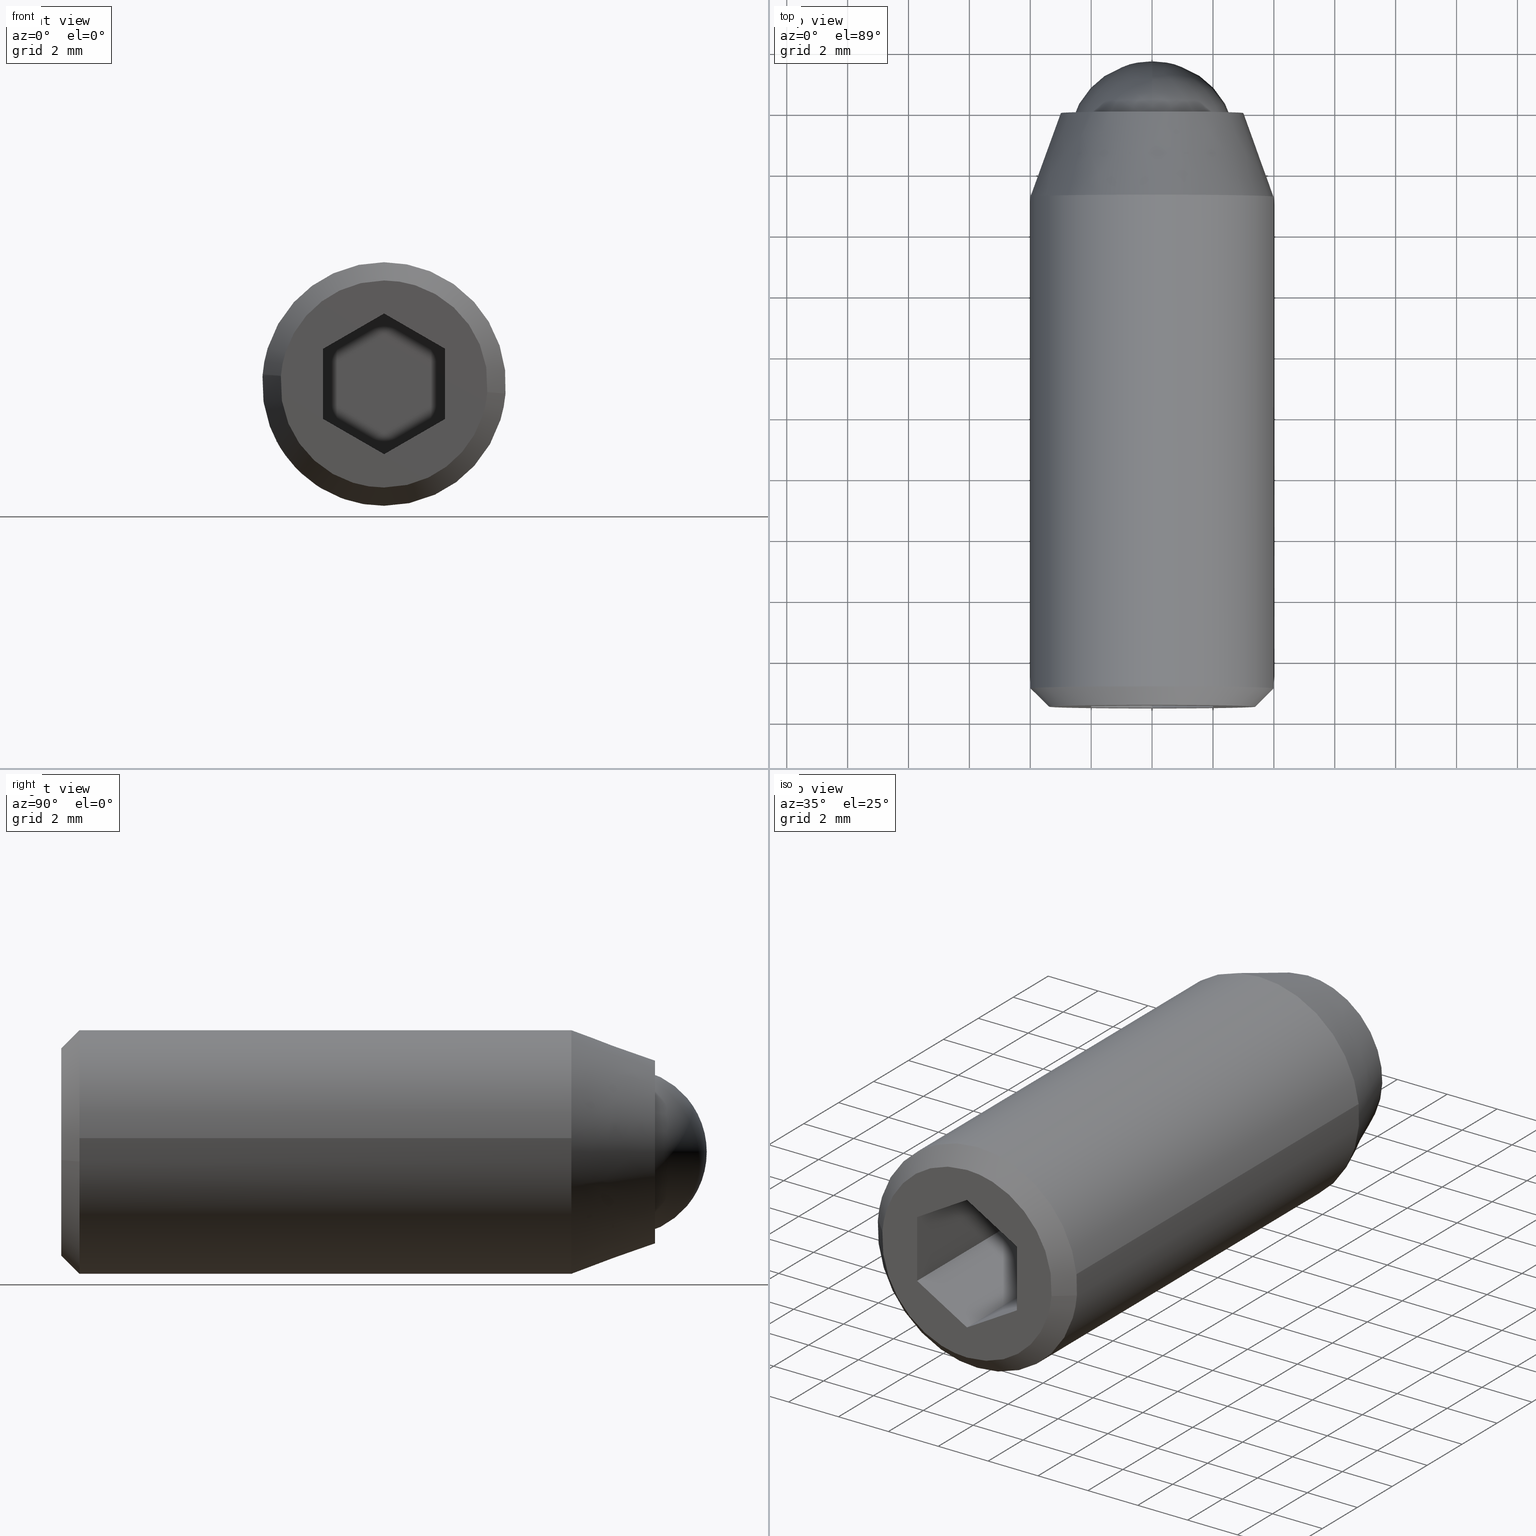
[diagram: canonical four-view strip — front | top / right | iso, engineering-drawing reading convention]
A machine part, canonical four-view strip (front | top / right | iso — engineering-drawing reading convention). The complete STEP part file that produces these views, byte-faithful:
ISO-10303-21;
HEADER;
/****************************************************************
 * Generated by software with PDE/Lib inside                    *
 * PDElib Version 4.4.1-0003, patched  Thursday August 19 11:58 *
 * International Technegroup Inc. (www.iti-oh.com)              *
 ****************************************************************/
FILE_DESCRIPTION((''),'2;1');
FILE_NAME('','2005-07-15T11:44:09',(''),(''),'','CADfix','');
FILE_SCHEMA(('AUTOMOTIVE_DESIGN'));
ENDSEC;
DATA;
#5=APPLICATION_CONTEXT('automotive design');
#6=APPLICATION_PROTOCOL_DEFINITION('Draft International Standard','automotive_design',1998,#5);
#7=PRODUCT_CONTEXT('None',#5,'mechanical');
#8=PRODUCT('body','','None',(#7));
#9=PRODUCT_RELATED_PRODUCT_CATEGORY('part','description',(#8));
#10=PRODUCT_DEFINITION_FORMATION('None','None',#8);
#11=PRODUCT_DEFINITION_CONTEXT('part definition',#5,'design');
#12=PRODUCT_DEFINITION('None','None',#10,#11);
#18=(NAMED_UNIT(*)PLANE_ANGLE_UNIT()SI_UNIT($,.RADIAN.));
#19=DIMENSIONAL_EXPONENTS(0.0,0.0,0.0,0.0,0.0,0.0,0.0);
#20=PLANE_ANGLE_MEASURE_WITH_UNIT(PLANE_ANGLE_MEASURE(0.017453292500000),#18);
#24=(CONVERSION_BASED_UNIT('DEGREE',#20)NAMED_UNIT(#19)PLANE_ANGLE_UNIT());
#28=(NAMED_UNIT(*)SI_UNIT($,.STERADIAN.)SOLID_ANGLE_UNIT());
#32=(LENGTH_UNIT()NAMED_UNIT(*)SI_UNIT(.MILLI.,.METRE.));
#34=UNCERTAINTY_MEASURE_WITH_UNIT(LENGTH_MEASURE(0.001000000000000),#32,'DISTANCE_ACCURACY_VALUE','');
#36=(GEOMETRIC_REPRESENTATION_CONTEXT(3)GLOBAL_UNCERTAINTY_ASSIGNED_CONTEXT((#34))GLOBAL_UNIT_ASSIGNED_CONTEXT((#24,#28,#32))REPRESENTATION_CONTEXT('None','None'));
#37=AXIS2_PLACEMENT_3D('',#38,#39,#40);
#38=CARTESIAN_POINT('',(0.0,0.0,0.0));
#39=DIRECTION('',(0.0,0.0,1.0));
#40=DIRECTION('',(1.0,0.0,0.0));
#41=ADVANCED_BREP_SHAPE_REPRESENTATION('',(#37,#953,#1164),#36);
#42=PRODUCT_DEFINITION_SHAPE('','',#12);
#43=SHAPE_DEFINITION_REPRESENTATION(#42,#41);
#44=CARTESIAN_POINT('',(-2.730776197500084,0.125000000000000,0.324594145306086));
#45=CARTESIAN_POINT('',(-2.740065942483665,0.125000000000000,0.246440503754439));
#46=CARTESIAN_POINT('',(-2.744870695660134,0.125000000000000,0.167883483720857));
#47=CARTESIAN_POINT('',(-2.912754179380990,0.125000000000000,-2.576987211939278));
#48=CARTESIAN_POINT('',(-0.167883483720857,0.125000000000000,-2.744870695660134));
#49=CARTESIAN_POINT('',(2.576987211939278,0.125000000000000,-2.912754179380990));
#50=CARTESIAN_POINT('',(2.744870695660134,0.125000000000000,-0.167883483720857));
#51=CARTESIAN_POINT('',(-2.730776197500084,-5.128125000000002,0.324594145306086));
#52=CARTESIAN_POINT('',(-2.740065942483665,-5.128125000000001,0.246440503754439));
#53=CARTESIAN_POINT('',(-2.744870695660134,-5.128125000000001,0.167883483720857));
#54=CARTESIAN_POINT('',(-2.912754179380990,-5.128125000000001,-2.576987211939278));
#55=CARTESIAN_POINT('',(-0.167883483720857,-5.128125000000001,-2.744870695660134));
#56=CARTESIAN_POINT('',(2.576987211939278,-5.128125000000001,-2.912754179380990));
#57=CARTESIAN_POINT('',(2.744870695660134,-5.128125000000001,-0.167883483720857));
#65=(BOUNDED_SURFACE()B_SPLINE_SURFACE(2,1,((#44,#51),(#45,#52),(#46,#53),(#47,#54),(#48,#55),(#49,#56),(#50,#57)),.UNSPECIFIED.,.F.,.F.,.U.)B_SPLINE_SURFACE_WITH_KNOTS((3,2,2,3),(2,2),(0.0,0.182253967444162,4.738603153548208,9.294952339652255),(0.0,5.253125000000002),.UNSPECIFIED.)GEOMETRIC_REPRESENTATION_ITEM()RATIONAL_B_SPLINE_SURFACE(((0.977505800795127,0.977505800795127),(0.988284271247462,0.988284271247462),(1.0,1.0),(0.707106781186548,0.707106781186548),(1.0,1.0),(0.707106781186548,0.707106781186548),(1.0,1.0)))REPRESENTATION_ITEM('')SURFACE());
#66=CARTESIAN_POINT('',(-2.730776770907558,-5.000000000000033,0.324589321216967));
#67=VERTEX_POINT('',#66);
#68=CARTESIAN_POINT('',(0.0,-5.0,-2.750000000000000));
#69=VERTEX_POINT('',#68);
#70=CARTESIAN_POINT('',(-2.730776770907559,-5.000000000000034,0.324589321216967));
#71=CARTESIAN_POINT('',(-2.750000000000001,-5.000000000000001,0.162863891499006));
#72=CARTESIAN_POINT('',(-2.750000000000000,-5.0,0.0));
#73=CARTESIAN_POINT('',(-2.750000000000000,-5.000000000000001,-2.750000000000000));
#74=CARTESIAN_POINT('',(0.0,-5.0,-2.750000000000000));
#82=(BOUNDED_CURVE()B_SPLINE_CURVE(2,(#70,#71,#72,#73,#74),.UNSPECIFIED.,.F.,.U.)B_SPLINE_CURVE_WITH_KNOTS((3,2,3),(0.229562772070619,0.250000000000000,0.500000000000000),.UNSPECIFIED.)CURVE()GEOMETRIC_REPRESENTATION_ITEM()RATIONAL_B_SPLINE_CURVE((0.956027339368690,0.976056298112558,1.0,0.707106781186548,1.0))REPRESENTATION_ITEM(''));
#83=EDGE_CURVE('',#67,#69,#82,.T.);
#84=ORIENTED_EDGE('',*,*,#83,.T.);
#85=CARTESIAN_POINT('',(2.744870880961206,-4.999999999999982,-0.167880454020225));
#86=VERTEX_POINT('',#85);
#87=CARTESIAN_POINT('',(0.0,-5.0,-2.750000000000000));
#88=CARTESIAN_POINT('',(2.586944544711403,-5.000000000000001,-2.750000000000000));
#89=CARTESIAN_POINT('',(2.744870880961206,-4.999999999999981,-0.167880454020225));
#97=(BOUNDED_CURVE()B_SPLINE_CURVE(2,(#87,#88,#89),.UNSPECIFIED.,.F.,.U.)B_SPLINE_CURVE_WITH_KNOTS((3,3),(0.500000000000000,0.739333152693633),.UNSPECIFIED.)CURVE()GEOMETRIC_REPRESENTATION_ITEM()RATIONAL_B_SPLINE_CURVE((1.0,0.719603770155162,0.976072449847712))REPRESENTATION_ITEM(''));
#98=EDGE_CURVE('',#69,#86,#97,.T.);
#99=ORIENTED_EDGE('',*,*,#98,.T.);
#100=CARTESIAN_POINT('',(2.744870878678144,-1.110223E-016,-0.167880491349306));
#101=VERTEX_POINT('',#100);
#102=CARTESIAN_POINT('',(2.744870878678144,-1.110223E-016,-0.167880491349306));
#103=CARTESIAN_POINT('',(2.744870880961206,-4.999999999999982,-0.167880454020225));
#104=QUASI_UNIFORM_CURVE('',1,(#102,#103),.UNSPECIFIED.,.F.,.U.);
#105=EDGE_CURVE('',#101,#86,#104,.T.);
#106=ORIENTED_EDGE('',*,*,#105,.F.);
#107=CARTESIAN_POINT('',(0.0,0.0,-2.750000000000000));
#108=VERTEX_POINT('',#107);
#109=CARTESIAN_POINT('',(0.0,0.0,-2.750000000000000));
#110=CARTESIAN_POINT('',(2.586944509464315,0.0,-2.749999999999999));
#111=CARTESIAN_POINT('',(2.744870878678144,-1.110223E-016,-0.167880491349306));
#119=(BOUNDED_CURVE()B_SPLINE_CURVE(2,(#109,#110,#111),.UNSPECIFIED.,.F.,.U.)B_SPLINE_CURVE_WITH_KNOTS((3,3),(0.500000000000000,0.739333150347069),.UNSPECIFIED.)CURVE()GEOMETRIC_REPRESENTATION_ITEM()RATIONAL_B_SPLINE_CURVE((1.0,0.719603772904333,0.976072444818570))REPRESENTATION_ITEM(''));
#120=EDGE_CURVE('',#108,#101,#119,.T.);
#121=ORIENTED_EDGE('',*,*,#120,.F.);
#122=CARTESIAN_POINT('',(-2.730776763826689,-1.135771E-016,0.324589380789353));
#123=VERTEX_POINT('',#122);
#124=CARTESIAN_POINT('',(-2.730776763826689,-1.135771E-016,0.324589380789353));
#125=CARTESIAN_POINT('',(-2.750000000000000,0.0,0.162863921600079));
#126=CARTESIAN_POINT('',(-2.750000000000000,0.0,0.0));
#127=CARTESIAN_POINT('',(-2.750000000000000,0.0,-2.750000000000000));
#128=CARTESIAN_POINT('',(0.0,0.0,-2.750000000000000));
#136=(BOUNDED_CURVE()B_SPLINE_CURVE(2,(#124,#125,#126,#127,#128),.UNSPECIFIED.,.F.,.U.)B_SPLINE_CURVE_WITH_KNOTS((3,2,3),(0.229562768383781,0.250000000000000,0.500000000000000),.UNSPECIFIED.)CURVE()GEOMETRIC_REPRESENTATION_ITEM()RATIONAL_B_SPLINE_CURVE((0.956027332142316,0.976056293793159,1.0,0.707106781186548,1.0))REPRESENTATION_ITEM(''));
#137=EDGE_CURVE('',#123,#108,#136,.T.);
#138=ORIENTED_EDGE('',*,*,#137,.F.);
#139=CARTESIAN_POINT('',(-2.730776763826689,-1.135771E-016,0.324589380789353));
#140=CARTESIAN_POINT('',(-2.730776770907558,-5.000000000000033,0.324589321216967));
#141=QUASI_UNIFORM_CURVE('',1,(#139,#140),.UNSPECIFIED.,.F.,.U.);
#142=EDGE_CURVE('',#123,#67,#141,.T.);
#143=ORIENTED_EDGE('',*,*,#142,.T.);
#144=EDGE_LOOP('',(#84,#99,#106,#121,#138,#143));
#145=FACE_OUTER_BOUND('',#144,.T.);
#146=ADVANCED_FACE('',(#145),#65,.F.);
#147=CARTESIAN_POINT('',(2.742557410672788,0.125000000000000,-0.205705358939012));
#148=CARTESIAN_POINT('',(2.743710742954771,0.125000000000000,-0.186848542812645));
#149=CARTESIAN_POINT('',(2.912754179380990,0.125000000000000,2.576987211939278));
#150=CARTESIAN_POINT('',(0.167883483720857,0.125000000000000,2.744870695660134));
#151=CARTESIAN_POINT('',(-2.424244599808628,0.125000000000000,2.903412041014450));
#152=CARTESIAN_POINT('',(-2.733071367229717,0.125000000000000,0.305285125234275));
#153=CARTESIAN_POINT('',(-2.735354201298633,0.125000000000000,0.286079883770789));
#154=CARTESIAN_POINT('',(2.742557410672788,-5.128125000000002,-0.205705358939012));
#155=CARTESIAN_POINT('',(2.743710742954771,-5.128125000000001,-0.186848542812645));
#156=CARTESIAN_POINT('',(2.912754179380990,-5.128125000000001,2.576987211939278));
#157=CARTESIAN_POINT('',(0.167883483720857,-5.128125000000001,2.744870695660134));
#158=CARTESIAN_POINT('',(-2.424244599808628,-5.128125000000000,2.903412041014450));
#159=CARTESIAN_POINT('',(-2.733071367229717,-5.128125000000003,0.305285125234275));
#160=CARTESIAN_POINT('',(-2.735354201298633,-5.128125000000002,0.286079883770789));
#168=(BOUNDED_SURFACE()B_SPLINE_SURFACE(2,1,((#147,#154),(#148,#155),(#149,#156),(#150,#157),(#151,#158),(#152,#159),(#153,#160)),.UNSPECIFIED.,.F.,.F.,.U.)B_SPLINE_SURFACE_WITH_KNOTS((3,1,2,1,3),(2,2),(0.0,0.044648718950236,4.600997905054283,8.975093123714167,9.019750918526473),(0.0,5.253125000000002),.UNSPECIFIED.)GEOMETRIC_REPRESENTATION_ITEM()RATIONAL_B_SPLINE_SURFACE(((1.005740256716546,1.005740256716546),(1.002870128358273,1.002870128358273),(0.707106781186548,0.707106781186548),(1.0,1.0),(0.718822509939086,0.718822509939086),(0.980146855629768,0.980146855629768),(0.982787910464409,0.982787910464409)))REPRESENTATION_ITEM('')SURFACE());
#169=CARTESIAN_POINT('',(0.0,-5.0,2.750000000000000));
#170=VERTEX_POINT('',#169);
#171=CARTESIAN_POINT('',(0.0,-5.0,2.750000000000000));
#172=CARTESIAN_POINT('',(-2.442484291539086,-5.0,2.749999999999999));
#173=CARTESIAN_POINT('',(-2.730776770907559,-5.000000000000034,0.324589321216967));
#181=(BOUNDED_CURVE()B_SPLINE_CURVE(2,(#171,#172,#173),.UNSPECIFIED.,.F.,.U.)B_SPLINE_CURVE_WITH_KNOTS((3,3),(0.0,0.229562772070619),.UNSPECIFIED.)CURVE()GEOMETRIC_REPRESENTATION_ITEM()RATIONAL_B_SPLINE_CURVE((1.0,0.731050483073990,0.956027339368690))REPRESENTATION_ITEM(''));
#182=EDGE_CURVE('',#170,#67,#181,.T.);
#183=ORIENTED_EDGE('',*,*,#182,.T.);
#184=ORIENTED_EDGE('',*,*,#142,.F.);
#185=CARTESIAN_POINT('',(0.0,0.0,2.750000000000000));
#186=VERTEX_POINT('',#185);
#187=CARTESIAN_POINT('',(0.0,0.0,2.750000000000000));
#188=CARTESIAN_POINT('',(-2.442484237880779,0.0,2.750000000000000));
#189=CARTESIAN_POINT('',(-2.730776763826689,-1.135771E-016,0.324589380789353));
#197=(BOUNDED_CURVE()B_SPLINE_CURVE(2,(#187,#188,#189),.UNSPECIFIED.,.F.,.U.)B_SPLINE_CURVE_WITH_KNOTS((3,3),(0.0,0.229562768383781),.UNSPECIFIED.)CURVE()GEOMETRIC_REPRESENTATION_ITEM()RATIONAL_B_SPLINE_CURVE((1.0,0.731050487393389,0.956027332142316))REPRESENTATION_ITEM(''));
#198=EDGE_CURVE('',#186,#123,#197,.T.);
#199=ORIENTED_EDGE('',*,*,#198,.F.);
#200=CARTESIAN_POINT('',(2.744870878678144,-1.110223E-016,-0.167880491349306));
#201=CARTESIAN_POINT('',(2.750000000000000,0.0,-0.084018598690310));
#202=CARTESIAN_POINT('',(2.750000000000000,0.0,0.0));
#203=CARTESIAN_POINT('',(2.750000000000000,0.0,2.750000000000000));
#204=CARTESIAN_POINT('',(0.0,0.0,2.750000000000000));
#212=(BOUNDED_CURVE()B_SPLINE_CURVE(2,(#200,#201,#202,#203,#204),.UNSPECIFIED.,.F.,.U.)B_SPLINE_CURVE_WITH_KNOTS((3,2,3),(0.739333150347069,0.750000000000000,1.0),.UNSPECIFIED.)CURVE()GEOMETRIC_REPRESENTATION_ITEM()RATIONAL_B_SPLINE_CURVE((0.976072444818570,0.987503008282215,1.0,0.707106781186548,1.0))REPRESENTATION_ITEM(''));
#213=EDGE_CURVE('',#101,#186,#212,.T.);
#214=ORIENTED_EDGE('',*,*,#213,.F.);
#215=ORIENTED_EDGE('',*,*,#105,.T.);
#216=CARTESIAN_POINT('',(2.744870880961206,-4.999999999999981,-0.167880454020225));
#217=CARTESIAN_POINT('',(2.750000000000000,-5.0,-0.084018579973439));
#218=CARTESIAN_POINT('',(2.750000000000000,-5.0,0.0));
#219=CARTESIAN_POINT('',(2.750000000000000,-5.000000000000001,2.750000000000000));
#220=CARTESIAN_POINT('',(0.0,-5.0,2.750000000000000));
#228=(BOUNDED_CURVE()B_SPLINE_CURVE(2,(#216,#217,#218,#219,#220),.UNSPECIFIED.,.F.,.U.)B_SPLINE_CURVE_WITH_KNOTS((3,2,3),(0.739333152693633,0.750000000000000,1.0),.UNSPECIFIED.)CURVE()GEOMETRIC_REPRESENTATION_ITEM()RATIONAL_B_SPLINE_CURVE((0.976072449847712,0.987503011031386,1.0,0.707106781186548,1.0))REPRESENTATION_ITEM(''));
#229=EDGE_CURVE('',#86,#170,#228,.T.);
#230=ORIENTED_EDGE('',*,*,#229,.T.);
#231=EDGE_LOOP('',(#183,#184,#199,#214,#215,#230));
#232=FACE_OUTER_BOUND('',#231,.T.);
#233=ADVANCED_FACE('',(#232),#168,.F.);
#234=CARTESIAN_POINT('',(-2.412646379587942,0.068686925000000,-1.740621281916663));
#235=CARTESIAN_POINT('',(-1.588163700979914,0.068686925000000,-2.883423090812313));
#236=CARTESIAN_POINT('',(-0.181619405116200,0.068686925000000,-2.969451025305056));
#237=CARTESIAN_POINT('',(2.787831620188855,0.068686925000000,-3.151070430421255));
#238=CARTESIAN_POINT('',(2.969451025305055,0.068686925000000,-0.181619405116200));
#239=CARTESIAN_POINT('',(3.151070430421255,0.068686925000000,2.787831620188855));
#240=CARTESIAN_POINT('',(0.181619405116200,0.068686925000000,2.969451025305054));
#241=CARTESIAN_POINT('',(-2.787831620188855,0.068686925000000,3.151070430421254));
#242=CARTESIAN_POINT('',(-2.969451025305055,0.068686925000000,0.181619405116199));
#243=CARTESIAN_POINT('',(-3.264675489690320,-2.817881098125001,-2.355323881685970));
#244=CARTESIAN_POINT('',(-2.149025713867987,-2.817881098125001,-3.901707589899600));
#245=CARTESIAN_POINT('',(-0.245758526965009,-2.817881098125001,-4.018116397897028));
#246=CARTESIAN_POINT('',(3.772357870932019,-2.817881098125000,-4.263874924862038));
#247=CARTESIAN_POINT('',(4.018116397897027,-2.817881098125001,-0.245758526965009));
#248=CARTESIAN_POINT('',(4.263874924862037,-2.817881098125000,3.772357870932019));
#249=CARTESIAN_POINT('',(0.245758526965009,-2.817881098125001,4.018116397897027));
#250=CARTESIAN_POINT('',(-3.772357870932019,-2.817881098125000,4.263874924862035));
#251=CARTESIAN_POINT('',(-4.018116397897027,-2.817881098125001,0.245758526965008));
#259=(BOUNDED_SURFACE()B_SPLINE_SURFACE(2,1,((#234,#243),(#235,#244),(#236,#245),(#237,#246),(#238,#247),(#239,#248),(#240,#249),(#241,#250),(#242,#251)),.UNSPECIFIED.,.F.,.F.,.U.)B_SPLINE_SURFACE_WITH_KNOTS((3,2,2,2,3),(2,2),(0.0,3.735129377343146,10.405003265455910,17.074877153568671,23.744751041681429),(0.0,3.071821583808665),.UNSPECIFIED.)GEOMETRIC_REPRESENTATION_ITEM()RATIONAL_B_SPLINE_SURFACE(((0.855662221768731,0.855662221768731),(0.835979797464467,0.835979797464467),(1.0,1.0),(0.707106781186548,0.707106781186548),(1.0,1.0),(0.707106781186548,0.707106781186548),(1.0,1.0),(0.707106781186548,0.707106781186548),(1.0,1.0)))REPRESENTATION_ITEM('')SURFACE());
#260=CARTESIAN_POINT('',(-2.432920718910684,-2.809699E-013,-1.755248351514891));
#261=VERTEX_POINT('',#260);
#262=CARTESIAN_POINT('',(0.0,0.0,-3.000000000000001));
#263=VERTEX_POINT('',#262);
#264=CARTESIAN_POINT('',(-2.432920718910684,-2.809699E-013,-1.755248351514890));
#265=CARTESIAN_POINT('',(-1.534885586869182,0.0,-3.000000000000000));
#266=CARTESIAN_POINT('',(0.0,0.0,-3.000000000000001));
#274=(BOUNDED_CURVE()B_SPLINE_CURVE(2,(#264,#265,#266),.UNSPECIFIED.,.F.,.U.)B_SPLINE_CURVE_WITH_KNOTS((3,3),(0.850743050382277,1.0),.UNSPECIFIED.)CURVE()GEOMETRIC_REPRESENTATION_ITEM()RATIONAL_B_SPLINE_CURVE((0.859068214727218,0.825134606384751,1.0))REPRESENTATION_ITEM(''));
#275=EDGE_CURVE('',#261,#263,#274,.T.);
#276=ORIENTED_EDGE('',*,*,#275,.T.);
#277=CARTESIAN_POINT('',(0.0,0.0,2.999999999999999));
#278=VERTEX_POINT('',#277);
#279=CARTESIAN_POINT('',(0.0,0.0,-3.000000000000001));
#280=CARTESIAN_POINT('',(3.0,0.0,-3.0));
#281=CARTESIAN_POINT('',(3.0,0.0,-6.735335E-016));
#282=CARTESIAN_POINT('',(3.0,0.0,2.999999999999999));
#283=CARTESIAN_POINT('',(0.0,0.0,2.999999999999999));
#291=(BOUNDED_CURVE()B_SPLINE_CURVE(2,(#279,#280,#281,#282,#283),.UNSPECIFIED.,.F.,.U.)B_SPLINE_CURVE_WITH_KNOTS((3,2,3),(0.0,0.250000000000000,0.500000000000000),.UNSPECIFIED.)CURVE()GEOMETRIC_REPRESENTATION_ITEM()RATIONAL_B_SPLINE_CURVE((1.0,0.707106781186548,1.0,0.707106781186548,1.0))REPRESENTATION_ITEM(''));
#292=EDGE_CURVE('',#263,#278,#291,.T.);
#293=ORIENTED_EDGE('',*,*,#292,.T.);
#294=CARTESIAN_POINT('',(-2.994404395265736,-4.475316E-012,0.183145618629053));
#295=VERTEX_POINT('',#294);
#296=CARTESIAN_POINT('',(0.0,0.0,2.999999999999999));
#297=CARTESIAN_POINT('',(-2.822118200671037,0.0,2.999999999999999));
#298=CARTESIAN_POINT('',(-2.994404395265736,-4.475316E-012,0.183145618629053));
#306=(BOUNDED_CURVE()B_SPLINE_CURVE(2,(#296,#297,#298),.UNSPECIFIED.,.F.,.U.)B_SPLINE_CURVE_WITH_KNOTS((3,3),(0.500000000000000,0.739332962239158),.UNSPECIFIED.)CURVE()GEOMETRIC_REPRESENTATION_ITEM()RATIONAL_B_SPLINE_CURVE((1.0,0.719603993286458,0.976072041667179))REPRESENTATION_ITEM(''));
#307=EDGE_CURVE('',#278,#295,#306,.T.);
#308=ORIENTED_EDGE('',*,*,#307,.T.);
#309=CARTESIAN_POINT('',(-3.992539385356825,-2.747476995765231,0.244190999084494));
#310=VERTEX_POINT('',#309);
#311=CARTESIAN_POINT('',(-2.994404395265736,-4.475316E-012,0.183145618629053));
#312=CARTESIAN_POINT('',(-3.992539385356825,-2.747476995765231,0.244190999084494));
#313=QUASI_UNIFORM_CURVE('',1,(#311,#312),.UNSPECIFIED.,.F.,.U.);
#314=EDGE_CURVE('',#295,#310,#313,.T.);
#315=ORIENTED_EDGE('',*,*,#314,.T.);
#316=CARTESIAN_POINT('',(0.0,-2.747477000000000,3.999999999999999));
#317=VERTEX_POINT('',#316);
#318=CARTESIAN_POINT('',(0.0,-2.747477000000000,3.999999999999999));
#319=CARTESIAN_POINT('',(-3.762827250393930,-2.747477000000000,4.000000000000000));
#320=CARTESIAN_POINT('',(-3.992539385356825,-2.747476995765231,0.244190999084494));
#328=(BOUNDED_CURVE()B_SPLINE_CURVE(2,(#318,#319,#320),.UNSPECIFIED.,.F.,.U.)B_SPLINE_CURVE_WITH_KNOTS((3,3),(0.500000000000000,0.739333098763761),.UNSPECIFIED.)CURVE()GEOMETRIC_REPRESENTATION_ITEM()RATIONAL_B_SPLINE_CURVE((1.0,0.719603833337937,0.976072334265566))REPRESENTATION_ITEM(''));
#329=EDGE_CURVE('',#317,#310,#328,.T.);
#330=ORIENTED_EDGE('',*,*,#329,.F.);
#331=CARTESIAN_POINT('',(3.973877514733711,-2.747477000000000,0.456396207096037));
#332=VERTEX_POINT('',#331);
#333=CARTESIAN_POINT('',(3.973877514733711,-2.747477000000000,0.456396207096037));
#334=CARTESIAN_POINT('',(3.566897852045294,-2.747477000000000,3.999999999999999));
#335=CARTESIAN_POINT('',(0.0,-2.747477000000000,3.999999999999999));
#343=(BOUNDED_CURVE()B_SPLINE_CURVE(2,(#333,#334,#335),.UNSPECIFIED.,.F.,.U.)B_SPLINE_CURVE_WITH_KNOTS((3,3),(0.269767481110062,0.500000000000000),.UNSPECIFIED.)CURVE()GEOMETRIC_REPRESENTATION_ITEM()RATIONAL_B_SPLINE_CURVE((0.957344278464731,0.730265825867189,1.0))REPRESENTATION_ITEM(''));
#344=EDGE_CURVE('',#332,#317,#343,.T.);
#345=ORIENTED_EDGE('',*,*,#344,.F.);
#346=CARTESIAN_POINT('',(0.0,-2.747477000000000,-4.000000000000001));
#347=VERTEX_POINT('',#346);
#348=CARTESIAN_POINT('',(0.0,-2.747477000000000,-4.000000000000001));
#349=CARTESIAN_POINT('',(4.000000000000000,-2.747477000000000,-4.000000000000001));
#350=CARTESIAN_POINT('',(4.0,-2.747477000000000,-6.735335E-016));
#351=CARTESIAN_POINT('',(4.000000000000001,-2.747477000000000,0.228945682324833));
#352=CARTESIAN_POINT('',(3.973877514733711,-2.747477000000000,0.456396207096037));
#360=(BOUNDED_CURVE()B_SPLINE_CURVE(2,(#348,#349,#350,#351,#352),.UNSPECIFIED.,.F.,.U.)B_SPLINE_CURVE_WITH_KNOTS((3,2,3),(0.0,0.250000000000000,0.269767481110062),.UNSPECIFIED.)CURVE()GEOMETRIC_REPRESENTATION_ITEM()RATIONAL_B_SPLINE_CURVE((1.0,0.707106781186548,1.0,0.976840955319359,0.957344278464731))REPRESENTATION_ITEM(''));
#361=EDGE_CURVE('',#347,#332,#360,.T.);
#362=ORIENTED_EDGE('',*,*,#361,.F.);
#363=CARTESIAN_POINT('',(-3.243894291881534,-2.747477000000260,-2.340331135352250));
#364=VERTEX_POINT('',#363);
#365=CARTESIAN_POINT('',(-3.243894291881534,-2.747477000000260,-2.340331135352251));
#366=CARTESIAN_POINT('',(-2.046514115826994,-2.747477000000000,-4.000000000000002));
#367=CARTESIAN_POINT('',(0.0,-2.747477000000000,-4.000000000000001));
#375=(BOUNDED_CURVE()B_SPLINE_CURVE(2,(#365,#366,#367),.UNSPECIFIED.,.F.,.U.)B_SPLINE_CURVE_WITH_KNOTS((3,3),(0.850743050382192,1.0),.UNSPECIFIED.)CURVE()GEOMETRIC_REPRESENTATION_ITEM()RATIONAL_B_SPLINE_CURVE((0.859068214727257,0.825134606384651,1.0))REPRESENTATION_ITEM(''));
#376=EDGE_CURVE('',#364,#347,#375,.T.);
#377=ORIENTED_EDGE('',*,*,#376,.F.);
#378=CARTESIAN_POINT('',(-2.432920718910684,-2.809699E-013,-1.755248351514891));
#379=CARTESIAN_POINT('',(-3.243894291881534,-2.747477000000260,-2.340331135352250));
#380=QUASI_UNIFORM_CURVE('',1,(#378,#379),.UNSPECIFIED.,.F.,.U.);
#381=EDGE_CURVE('',#261,#364,#380,.T.);
#382=ORIENTED_EDGE('',*,*,#381,.F.);
#383=EDGE_LOOP('',(#276,#293,#308,#315,#330,#345,#362,#377,#382));
#384=FACE_OUTER_BOUND('',#383,.T.);
#385=ADVANCED_FACE('',(#384),#259,.T.);
#386=CARTESIAN_POINT('',(-2.969451025305055,0.068686925000000,0.181619405116199));
#387=CARTESIAN_POINT('',(-3.034317225933767,0.068686925000000,-0.878933600446937));
#388=CARTESIAN_POINT('',(-2.412646379587942,0.068686925000000,-1.740621281916663));
#389=CARTESIAN_POINT('',(-4.018116397897027,-2.817881098125001,0.245758526965008));
#390=CARTESIAN_POINT('',(-4.105890179041889,-2.817881098125000,-1.189330109344269));
#391=CARTESIAN_POINT('',(-3.264675489690320,-2.817881098125001,-2.355323881685970));
#399=(BOUNDED_SURFACE()B_SPLINE_SURFACE(2,1,((#386,#389),(#387,#390),(#388,#391)),.UNSPECIFIED.,.F.,.F.,.U.)B_SPLINE_SURFACE_WITH_KNOTS((3,3),(2,2),(0.0,2.927511655842914),(0.0,3.071821583808665),.UNSPECIFIED.)GEOMETRIC_REPRESENTATION_ITEM()RATIONAL_B_SPLINE_SURFACE(((1.0,1.0),(0.871126983722081,0.871126983722081),(0.855662221768731,0.855662221768731)))REPRESENTATION_ITEM('')SURFACE());
#400=CARTESIAN_POINT('',(-2.994404395265736,-4.475316E-012,0.183145618629053));
#401=CARTESIAN_POINT('',(-3.000000000000000,0.0,0.091658289920218));
#402=CARTESIAN_POINT('',(-3.0,0.0,-6.735335E-016));
#403=CARTESIAN_POINT('',(-3.000000000000000,0.0,-0.969229136038005));
#404=CARTESIAN_POINT('',(-2.432920718910683,-2.809699E-013,-1.755248351514891));
#412=(BOUNDED_CURVE()B_SPLINE_CURVE(2,(#400,#401,#402,#403,#404),.UNSPECIFIED.,.F.,.U.)B_SPLINE_CURVE_WITH_KNOTS((3,2,3),(0.739332962239158,0.750000000000000,0.850743050382276),.UNSPECIFIED.)CURVE()GEOMETRIC_REPRESENTATION_ITEM()RATIONAL_B_SPLINE_CURVE((0.976072041667179,0.987502787900090,1.0,0.881972174801797,0.859068214727219))REPRESENTATION_ITEM(''));
#413=EDGE_CURVE('',#295,#261,#412,.T.);
#414=ORIENTED_EDGE('',*,*,#413,.T.);
#415=ORIENTED_EDGE('',*,*,#381,.T.);
#416=CARTESIAN_POINT('',(-3.992539385356825,-2.747476995765231,0.244190999084494));
#417=CARTESIAN_POINT('',(-4.000000000000001,-2.747477000000000,0.122209469285321));
#418=CARTESIAN_POINT('',(-4.0,-2.747477000000000,-6.735335E-016));
#419=CARTESIAN_POINT('',(-4.000000000000000,-2.747477000000000,-1.292305514716118));
#420=CARTESIAN_POINT('',(-3.243894291881534,-2.747477000000260,-2.340331135352250));
#428=(BOUNDED_CURVE()B_SPLINE_CURVE(2,(#416,#417,#418,#419,#420),.UNSPECIFIED.,.F.,.U.)B_SPLINE_CURVE_WITH_KNOTS((3,2,3),(0.739333098763761,0.750000000000000,0.850743050382192),.UNSPECIFIED.)CURVE()GEOMETRIC_REPRESENTATION_ITEM()RATIONAL_B_SPLINE_CURVE((0.976072334265566,0.987502947848611,1.0,0.881972174801896,0.859068214727257))REPRESENTATION_ITEM(''));
#429=EDGE_CURVE('',#310,#364,#428,.T.);
#430=ORIENTED_EDGE('',*,*,#429,.F.);
#431=ORIENTED_EDGE('',*,*,#314,.F.);
#432=EDGE_LOOP('',(#414,#415,#430,#431));
#433=FACE_OUTER_BOUND('',#432,.T.);
#434=ADVANCED_FACE('',(#433),#399,.T.);
#435=CARTESIAN_POINT('',(3.980316091158765,-2.343663925000000,0.400335821016026));
#436=CARTESIAN_POINT('',(3.977103598420194,-2.343663925000000,0.428306846225810));
#437=CARTESIAN_POINT('',(3.591260610344325,-2.343663924999999,3.787823839652829));
#438=CARTESIAN_POINT('',(0.244194158139428,-2.343663924999999,3.992539193687466));
#439=CARTESIAN_POINT('',(-3.748345035548039,-2.343663925000000,4.236733351826894));
#440=CARTESIAN_POINT('',(-3.994157945303674,-2.343663924999997,0.217727803162699));
#441=CARTESIAN_POINT('',(-3.995767831718254,-2.343663925000000,0.191406392951410));
#442=CARTESIAN_POINT('',(3.980316091158765,-19.313908401875008,0.400335821016026));
#443=CARTESIAN_POINT('',(3.977103598420194,-19.313908401874997,0.428306846225810));
#444=CARTESIAN_POINT('',(3.591260610344325,-19.313908401874997,3.787823839652829));
#445=CARTESIAN_POINT('',(0.244194158139428,-19.313908401875000,3.992539193687466));
#446=CARTESIAN_POINT('',(-3.748345035548039,-19.313908401875004,4.236733351826894));
#447=CARTESIAN_POINT('',(-3.994157945303674,-19.313908401874990,0.217727803162699));
#448=CARTESIAN_POINT('',(-3.995767831718254,-19.313908401875004,0.191406392951410));
#456=(BOUNDED_SURFACE()B_SPLINE_SURFACE(2,1,((#435,#442),(#436,#443),(#437,#444),(#438,#445),(#439,#446),(#440,#447),(#441,#448)),.UNSPECIFIED.,.F.,.F.,.U.)B_SPLINE_SURFACE_WITH_KNOTS((3,1,2,1,3),(2,2),(0.0,0.062304910480394,5.894431868693570,12.521848866663090,12.584150347148990),(0.0,16.970244476875010),.UNSPECIFIED.)GEOMETRIC_REPRESENTATION_ITEM()RATIONAL_B_SPLINE_SURFACE(((0.942326293533280,0.942326293533280),(0.940233622859939,0.940233622859939),(0.742253967444162,0.742253967444162),(1.0,1.0),(0.707106781186548,0.707106781186548),(1.002753362458097,1.002753362458097),(1.005506724916193,1.005506724916193)))REPRESENTATION_ITEM('')SURFACE());
#457=CARTESIAN_POINT('',(3.973876773741293,-18.899999999999999,0.456402658975039));
#458=VERTEX_POINT('',#457);
#459=CARTESIAN_POINT('',(0.0,-18.899999999999999,3.999999999999999));
#460=VERTEX_POINT('',#459);
#461=CARTESIAN_POINT('',(3.973876773741293,-18.900000000000002,0.456402658975039));
#462=CARTESIAN_POINT('',(3.566892022851084,-18.899999999999999,3.999999999999999));
#463=CARTESIAN_POINT('',(0.0,-18.899999999999999,3.999999999999999));
#471=(BOUNDED_CURVE()B_SPLINE_CURVE(2,(#461,#462,#463),.UNSPECIFIED.,.F.,.U.)B_SPLINE_CURVE_WITH_KNOTS((3,3),(0.269767755877767,0.500000000000000),.UNSPECIFIED.)CURVE()GEOMETRIC_REPRESENTATION_ITEM()RATIONAL_B_SPLINE_CURVE((0.957343736458379,0.730266147777579,1.0))REPRESENTATION_ITEM(''));
#472=EDGE_CURVE('',#458,#460,#471,.T.);
#473=ORIENTED_EDGE('',*,*,#472,.F.);
#474=CARTESIAN_POINT('',(3.973877514733711,-2.747477000000000,0.456396207096037));
#475=CARTESIAN_POINT('',(3.973876773741293,-18.899999999999999,0.456402658975039));
#476=QUASI_UNIFORM_CURVE('',1,(#474,#475),.UNSPECIFIED.,.F.,.U.);
#477=EDGE_CURVE('',#332,#458,#476,.T.);
#478=ORIENTED_EDGE('',*,*,#477,.F.);
#479=ORIENTED_EDGE('',*,*,#344,.T.);
#480=ORIENTED_EDGE('',*,*,#329,.T.);
#481=CARTESIAN_POINT('',(-3.992539218760148,-18.899999999999999,0.244193748204033));
#482=VERTEX_POINT('',#481);
#483=CARTESIAN_POINT('',(-3.992539385356825,-2.747476995765231,0.244190999084494));
#484=CARTESIAN_POINT('',(-3.992539218760148,-18.899999999999999,0.244193748204033));
#485=QUASI_UNIFORM_CURVE('',1,(#483,#484),.UNSPECIFIED.,.F.,.U.);
#486=EDGE_CURVE('',#310,#482,#485,.T.);
#487=ORIENTED_EDGE('',*,*,#486,.T.);
#488=CARTESIAN_POINT('',(-3.987669334934627,-18.899999999994701,0.313836382952172));
#489=VERTEX_POINT('',#488);
#490=CARTESIAN_POINT('',(-3.987669334934627,-18.899999999994701,0.313836382952172));
#491=CARTESIAN_POINT('',(-3.990408175777355,-18.899999999999999,0.279036110406021));
#492=CARTESIAN_POINT('',(-3.992539218760148,-18.899999999999995,0.244193748204032));
#500=(BOUNDED_CURVE()B_SPLINE_CURVE(2,(#490,#491,#492),.UNSPECIFIED.,.F.,.U.)B_SPLINE_CURVE_WITH_KNOTS((3,3),(0.736331300629296,0.739332997674577),.UNSPECIFIED.)CURVE()GEOMETRIC_REPRESENTATION_ITEM()RATIONAL_B_SPLINE_CURVE((0.969723356164571,0.972855512534206,0.976072117612039))REPRESENTATION_ITEM(''));
#501=EDGE_CURVE('',#489,#482,#500,.T.);
#502=ORIENTED_EDGE('',*,*,#501,.F.);
#503=CARTESIAN_POINT('',(0.0,-18.899999999999999,3.999999999999999));
#504=CARTESIAN_POINT('',(-3.697561966557721,-18.900000000000006,4.0));
#505=CARTESIAN_POINT('',(-3.987669334934627,-18.899999999994701,0.313836382952172));
#513=(BOUNDED_CURVE()B_SPLINE_CURVE(2,(#503,#504,#505),.UNSPECIFIED.,.F.,.U.)B_SPLINE_CURVE_WITH_KNOTS((3,3),(0.500000000000000,0.736331300629296),.UNSPECIFIED.)CURVE()GEOMETRIC_REPRESENTATION_ITEM()RATIONAL_B_SPLINE_CURVE((1.0,0.723120658609264,0.969723356164571))REPRESENTATION_ITEM(''));
#514=EDGE_CURVE('',#460,#489,#513,.T.);
#515=ORIENTED_EDGE('',*,*,#514,.F.);
#516=EDGE_LOOP('',(#473,#478,#479,#480,#487,#502,#515));
#517=FACE_OUTER_BOUND('',#516,.T.);
#518=ADVANCED_FACE('',(#517),#456,.T.);
#519=CARTESIAN_POINT('',(-3.992539193687467,-2.343663924999999,0.244194158139427));
#520=CARTESIAN_POINT('',(-4.236733351826894,-2.343663925000000,-3.748345035548040));
#521=CARTESIAN_POINT('',(-0.244194158139428,-2.343663924999999,-3.992539193687468));
#522=CARTESIAN_POINT('',(3.748345035548039,-2.343663925000000,-4.236733351826896));
#523=CARTESIAN_POINT('',(3.992539193687467,-2.343663924999999,-0.244194158139429));
#524=CARTESIAN_POINT('',(4.014014553579111,-2.343663925000000,0.106924872386186));
#525=CARTESIAN_POINT('',(3.973876773742854,-2.343663925000000,0.456402658961441));
#526=CARTESIAN_POINT('',(-3.992539193687467,-19.313908401875000,0.244194158139427));
#527=CARTESIAN_POINT('',(-4.236733351826894,-19.313908401875004,-3.748345035548040));
#528=CARTESIAN_POINT('',(-0.244194158139428,-19.313908401875000,-3.992539193687468));
#529=CARTESIAN_POINT('',(3.748345035548039,-19.313908401875004,-4.236733351826896));
#530=CARTESIAN_POINT('',(3.992539193687467,-19.313908401875000,-0.244194158139429));
#531=CARTESIAN_POINT('',(4.014014553579111,-19.313908401875004,0.106924872386186));
#532=CARTESIAN_POINT('',(3.973876773742854,-19.313908401875008,0.456402658961441));
#540=(BOUNDED_SURFACE()B_SPLINE_SURFACE(2,1,((#519,#526),(#520,#527),(#521,#528),(#522,#529),(#523,#530),(#524,#531),(#525,#532)),.UNSPECIFIED.,.F.,.F.,.U.)B_SPLINE_SURFACE_WITH_KNOTS((3,2,2,3),(2,2),(0.0,6.627416997969519,13.254833995939039,14.050124035695379),(0.0,16.970244476875010),.UNSPECIFIED.)GEOMETRIC_REPRESENTATION_ITEM()RATIONAL_B_SPLINE_SURFACE(((1.0,1.0),(0.707106781186548,0.707106781186548),(1.0,1.0),(0.707106781186548,0.707106781186548),(1.0,1.0),(0.964852813742386,0.964852813742386),(0.938140952186599,0.938140952186599)))REPRESENTATION_ITEM('')SURFACE());
#541=CARTESIAN_POINT('',(3.987669334934625,-18.899999999994701,-0.313836382952173));
#542=VERTEX_POINT('',#541);
#543=CARTESIAN_POINT('',(3.987669334934625,-18.899999999994698,-0.313836382952173));
#544=CARTESIAN_POINT('',(4.000000000000001,-18.899999999999991,-0.157160428071241));
#545=CARTESIAN_POINT('',(4.0,-18.899999999999999,-6.735335E-016));
#546=CARTESIAN_POINT('',(4.000000000000000,-18.899999999999999,0.228948940114904));
#547=CARTESIAN_POINT('',(3.973876773741293,-18.900000000000006,0.456402658975039));
#555=(BOUNDED_CURVE()B_SPLINE_CURVE(2,(#543,#544,#545,#546,#547),.UNSPECIFIED.,.F.,.U.)B_SPLINE_CURVE_WITH_KNOTS((3,2,3),(0.236331300629296,0.250000000000000,0.269767755877768),.UNSPECIFIED.)CURVE()GEOMETRIC_REPRESENTATION_ITEM()RATIONAL_B_SPLINE_CURVE((0.969723356164571,0.983986122577284,1.0,0.976840633408968,0.957343736458379))REPRESENTATION_ITEM(''));
#556=EDGE_CURVE('',#542,#458,#555,.T.);
#557=ORIENTED_EDGE('',*,*,#556,.F.);
#558=CARTESIAN_POINT('',(0.0,-18.899999999999999,-4.000000000000001));
#559=VERTEX_POINT('',#558);
#560=CARTESIAN_POINT('',(0.0,-18.899999999999999,-4.000000000000001));
#561=CARTESIAN_POINT('',(3.697561966557722,-18.900000000000009,-4.000000000000001));
#562=CARTESIAN_POINT('',(3.987669334934625,-18.899999999994698,-0.313836382952173));
#570=(BOUNDED_CURVE()B_SPLINE_CURVE(2,(#560,#561,#562),.UNSPECIFIED.,.F.,.U.)B_SPLINE_CURVE_WITH_KNOTS((3,3),(0.0,0.236331300629296),.UNSPECIFIED.)CURVE()GEOMETRIC_REPRESENTATION_ITEM()RATIONAL_B_SPLINE_CURVE((1.0,0.723120658609264,0.969723356164571))REPRESENTATION_ITEM(''));
#571=EDGE_CURVE('',#559,#542,#570,.T.);
#572=ORIENTED_EDGE('',*,*,#571,.F.);
#573=CARTESIAN_POINT('',(-3.992539218760148,-18.899999999999991,0.244193748204033));
#574=CARTESIAN_POINT('',(-4.000000000000001,-18.899999999999999,0.122210642109545));
#575=CARTESIAN_POINT('',(-4.0,-18.899999999999999,-6.735335E-016));
#576=CARTESIAN_POINT('',(-4.000000000000000,-18.900000000000002,-4.000000000000001));
#577=CARTESIAN_POINT('',(0.0,-18.899999999999999,-4.000000000000001));
#585=(BOUNDED_CURVE()B_SPLINE_CURVE(2,(#573,#574,#575,#576,#577),.UNSPECIFIED.,.F.,.U.)B_SPLINE_CURVE_WITH_KNOTS((3,2,3),(0.739332997674577,0.750000000000000,1.0),.UNSPECIFIED.)CURVE()GEOMETRIC_REPRESENTATION_ITEM()RATIONAL_B_SPLINE_CURVE((0.976072117612038,0.987502829415265,1.0,0.707106781186548,1.0))REPRESENTATION_ITEM(''));
#586=EDGE_CURVE('',#482,#559,#585,.T.);
#587=ORIENTED_EDGE('',*,*,#586,.F.);
#588=ORIENTED_EDGE('',*,*,#486,.F.);
#589=ORIENTED_EDGE('',*,*,#429,.T.);
#590=ORIENTED_EDGE('',*,*,#376,.T.);
#591=ORIENTED_EDGE('',*,*,#361,.T.);
#592=ORIENTED_EDGE('',*,*,#477,.T.);
#593=EDGE_LOOP('',(#557,#572,#587,#588,#589,#590,#591,#592));
#594=FACE_OUTER_BOUND('',#593,.T.);
#595=ADVANCED_FACE('',(#594),#540,.T.);
#596=CARTESIAN_POINT('',(3.374565174686632,-19.515000000000001,-0.265584039038757));
#597=CARTESIAN_POINT('',(3.108981135647875,-19.515000000000004,-3.640149213725390));
#598=CARTESIAN_POINT('',(-0.265584039038757,-19.515000000000001,-3.374565174686633));
#599=CARTESIAN_POINT('',(-3.640149213725390,-19.515000000000004,-3.108981135647877));
#600=CARTESIAN_POINT('',(-3.374565174686632,-19.515000000000001,0.265584039038756));
#601=CARTESIAN_POINT('',(4.002996938938681,-18.884625000000000,-0.315042691508200));
#602=CARTESIAN_POINT('',(3.687954247430481,-18.884624999999993,-4.318039630446882));
#603=CARTESIAN_POINT('',(-0.315042691508200,-18.884625000000000,-4.002996938938682));
#604=CARTESIAN_POINT('',(-4.318039630446882,-18.884624999999993,-3.687954247430483));
#605=CARTESIAN_POINT('',(-4.002996938938681,-18.884625000000000,0.315042691508199));
#613=(BOUNDED_SURFACE()B_SPLINE_SURFACE(2,1,((#596,#601),(#597,#602),(#598,#603),(#599,#604),(#600,#605)),.UNSPECIFIED.,.F.,.F.,.U.)B_SPLINE_SURFACE_WITH_KNOTS((3,2,3),(2,2),(0.0,6.652891132055504,13.305782264111009),(0.0,1.0),.UNSPECIFIED.)GEOMETRIC_REPRESENTATION_ITEM()RATIONAL_B_SPLINE_SURFACE(((1.0,1.0),(0.707106781186548,0.707106781186548),(1.0,1.0),(0.707106781186548,0.707106781186548),(1.0,1.0)))REPRESENTATION_ITEM('')SURFACE());
#614=ORIENTED_EDGE('',*,*,#571,.T.);
#615=CARTESIAN_POINT('',(3.389518934693979,-19.499999999996639,-0.266760925500477));
#616=VERTEX_POINT('',#615);
#617=CARTESIAN_POINT('',(3.389518934693979,-19.499999999996639,-0.266760925500477));
#618=CARTESIAN_POINT('',(3.987669334934625,-18.899999999994701,-0.313836382952173));
#619=QUASI_UNIFORM_CURVE('',1,(#617,#618),.UNSPECIFIED.,.F.,.U.);
#620=EDGE_CURVE('',#616,#542,#619,.T.);
#621=ORIENTED_EDGE('',*,*,#620,.F.);
#622=CARTESIAN_POINT('',(0.0,-19.500000000000000,-3.400000000000001));
#623=VERTEX_POINT('',#622);
#624=CARTESIAN_POINT('',(0.0,-19.500000000000000,-3.400000000000001));
#625=CARTESIAN_POINT('',(3.142927671590397,-19.499999999999996,-3.400000000000002));
#626=CARTESIAN_POINT('',(3.389518934693980,-19.499999999996636,-0.266760925500477));
#634=(BOUNDED_CURVE()B_SPLINE_CURVE(2,(#624,#625,#626),.UNSPECIFIED.,.F.,.U.)B_SPLINE_CURVE_WITH_KNOTS((3,3),(0.0,0.236331300630184),.UNSPECIFIED.)CURVE()GEOMETRIC_REPRESENTATION_ITEM()RATIONAL_B_SPLINE_CURVE((1.0,0.723120658608223,0.969723356166425))REPRESENTATION_ITEM(''));
#635=EDGE_CURVE('',#623,#616,#634,.T.);
#636=ORIENTED_EDGE('',*,*,#635,.F.);
#637=CARTESIAN_POINT('',(-3.389518934693980,-19.499999999996639,0.266760925500477));
#638=VERTEX_POINT('',#637);
#639=CARTESIAN_POINT('',(-3.389518934693981,-19.499999999996636,0.266760925500477));
#640=CARTESIAN_POINT('',(-3.399999999999999,-19.500000000000007,0.133586363851734));
#641=CARTESIAN_POINT('',(-3.400000000000000,-19.500000000000000,-6.735335E-016));
#642=CARTESIAN_POINT('',(-3.400000000000001,-19.500000000000004,-3.400000000000002));
#643=CARTESIAN_POINT('',(0.0,-19.500000000000000,-3.400000000000001));
#651=(BOUNDED_CURVE()B_SPLINE_CURVE(2,(#639,#640,#641,#642,#643),.UNSPECIFIED.,.F.,.U.)B_SPLINE_CURVE_WITH_KNOTS((3,2,3),(0.736331300630184,0.750000000000000,1.0),.UNSPECIFIED.)CURVE()GEOMETRIC_REPRESENTATION_ITEM()RATIONAL_B_SPLINE_CURVE((0.969723356166424,0.983986122578324,1.0,0.707106781186548,1.0))REPRESENTATION_ITEM(''));
#652=EDGE_CURVE('',#638,#623,#651,.T.);
#653=ORIENTED_EDGE('',*,*,#652,.F.);
#654=CARTESIAN_POINT('',(-3.389518934693980,-19.499999999996639,0.266760925500477));
#655=CARTESIAN_POINT('',(-3.987669334934627,-18.899999999994701,0.313836382952172));
#656=QUASI_UNIFORM_CURVE('',1,(#654,#655),.UNSPECIFIED.,.F.,.U.);
#657=EDGE_CURVE('',#638,#489,#656,.T.);
#658=ORIENTED_EDGE('',*,*,#657,.T.);
#659=ORIENTED_EDGE('',*,*,#501,.T.);
#660=ORIENTED_EDGE('',*,*,#586,.T.);
#661=EDGE_LOOP('',(#614,#621,#636,#653,#658,#659,#660));
#662=FACE_OUTER_BOUND('',#661,.T.);
#663=ADVANCED_FACE('',(#662),#613,.T.);
#664=CARTESIAN_POINT('',(-3.374565174686632,-19.515000000000001,0.265584039038756));
#665=CARTESIAN_POINT('',(-3.108981135647875,-19.515000000000004,3.640149213725388));
#666=CARTESIAN_POINT('',(0.265584039038757,-19.515000000000001,3.374565174686631));
#667=CARTESIAN_POINT('',(3.640149213725390,-19.515000000000004,3.108981135647875));
#668=CARTESIAN_POINT('',(3.374565174686632,-19.515000000000001,-0.265584039038757));
#669=CARTESIAN_POINT('',(-4.002996938938681,-18.884625000000000,0.315042691508199));
#670=CARTESIAN_POINT('',(-3.687954247430481,-18.884624999999993,4.318039630446880));
#671=CARTESIAN_POINT('',(0.315042691508200,-18.884625000000000,4.002996938938680));
#672=CARTESIAN_POINT('',(4.318039630446882,-18.884624999999993,3.687954247430481));
#673=CARTESIAN_POINT('',(4.002996938938681,-18.884625000000000,-0.315042691508200));
#681=(BOUNDED_SURFACE()B_SPLINE_SURFACE(2,1,((#664,#669),(#665,#670),(#666,#671),(#667,#672),(#668,#673)),.UNSPECIFIED.,.F.,.F.,.U.)B_SPLINE_SURFACE_WITH_KNOTS((3,2,3),(2,2),(0.0,6.652891132055504,13.305782264111009),(0.0,1.0),.UNSPECIFIED.)GEOMETRIC_REPRESENTATION_ITEM()RATIONAL_B_SPLINE_SURFACE(((1.0,1.0),(0.707106781186548,0.707106781186548),(1.0,1.0),(0.707106781186548,0.707106781186548),(1.0,1.0)))REPRESENTATION_ITEM('')SURFACE());
#682=ORIENTED_EDGE('',*,*,#556,.T.);
#683=ORIENTED_EDGE('',*,*,#472,.T.);
#684=ORIENTED_EDGE('',*,*,#514,.T.);
#685=ORIENTED_EDGE('',*,*,#657,.F.);
#686=CARTESIAN_POINT('',(0.0,-19.500000000000000,3.399999999999999));
#687=VERTEX_POINT('',#686);
#688=CARTESIAN_POINT('',(0.0,-19.500000000000000,3.399999999999999));
#689=CARTESIAN_POINT('',(-3.142927671590397,-19.499999999999996,3.400000000000000));
#690=CARTESIAN_POINT('',(-3.389518934693981,-19.499999999996636,0.266760925500477));
#698=(BOUNDED_CURVE()B_SPLINE_CURVE(2,(#688,#689,#690),.UNSPECIFIED.,.F.,.U.)B_SPLINE_CURVE_WITH_KNOTS((3,3),(0.500000000000000,0.736331300630184),.UNSPECIFIED.)CURVE()GEOMETRIC_REPRESENTATION_ITEM()RATIONAL_B_SPLINE_CURVE((1.0,0.723120658608223,0.969723356166425))REPRESENTATION_ITEM(''));
#699=EDGE_CURVE('',#687,#638,#698,.T.);
#700=ORIENTED_EDGE('',*,*,#699,.F.);
#701=CARTESIAN_POINT('',(3.389518934693980,-19.499999999996636,-0.266760925500477));
#702=CARTESIAN_POINT('',(3.400000000000000,-19.499999999999993,-0.133586363851735));
#703=CARTESIAN_POINT('',(3.400000000000000,-19.500000000000000,-6.735335E-016));
#704=CARTESIAN_POINT('',(3.400000000000001,-19.500000000000004,3.399999999999999));
#705=CARTESIAN_POINT('',(0.0,-19.500000000000000,3.399999999999999));
#713=(BOUNDED_CURVE()B_SPLINE_CURVE(2,(#701,#702,#703,#704,#705),.UNSPECIFIED.,.F.,.U.)B_SPLINE_CURVE_WITH_KNOTS((3,2,3),(0.236331300630184,0.250000000000000,0.500000000000000),.UNSPECIFIED.)CURVE()GEOMETRIC_REPRESENTATION_ITEM()RATIONAL_B_SPLINE_CURVE((0.969723356166425,0.983986122578324,1.0,0.707106781186548,1.0))REPRESENTATION_ITEM(''));
#714=EDGE_CURVE('',#616,#687,#713,.T.);
#715=ORIENTED_EDGE('',*,*,#714,.F.);
#716=ORIENTED_EDGE('',*,*,#620,.T.);
#717=EDGE_LOOP('',(#682,#683,#684,#685,#700,#715,#716));
#718=FACE_OUTER_BOUND('',#717,.T.);
#719=ADVANCED_FACE('',(#718),#681,.T.);
#720=CARTESIAN_POINT('',(-3.024675127472638,-5.0,3.024724989339933));
#721=CARTESIAN_POINT('',(3.024658064152955,-5.0,3.024724989339933));
#722=CARTESIAN_POINT('',(-3.024675127472638,-5.0,-3.024725136861429));
#723=CARTESIAN_POINT('',(3.024658064152955,-5.0,-3.024725136861429));
#724=B_SPLINE_SURFACE_WITH_KNOTS('',1,1,((#720,#722),(#721,#723)),.UNSPECIFIED.,.F.,.F.,.U.,(2,2),(2,2),(0.0,6.049333191625593),(0.0,6.049450126201362),.UNSPECIFIED.);
#725=ORIENTED_EDGE('',*,*,#229,.F.);
#726=ORIENTED_EDGE('',*,*,#98,.F.);
#727=ORIENTED_EDGE('',*,*,#83,.F.);
#728=ORIENTED_EDGE('',*,*,#182,.F.);
#729=EDGE_LOOP('',(#725,#726,#727,#728));
#730=FACE_OUTER_BOUND('',#729,.T.);
#731=ADVANCED_FACE('',(#730),#724,.T.);
#732=CARTESIAN_POINT('',(-2.199799992247224,-14.0,2.540110194305874));
#733=CARTESIAN_POINT('',(2.199800099535584,-14.0,2.540110194305874));
#734=CARTESIAN_POINT('',(-2.199799992247224,-14.0,-2.540110276896490));
#735=CARTESIAN_POINT('',(2.199800099535584,-14.0,-2.540110276896490));
#736=B_SPLINE_SURFACE_WITH_KNOTS('',1,1,((#732,#734),(#733,#735)),.UNSPECIFIED.,.F.,.F.,.U.,(2,2),(2,2),(0.0,4.399600091782808),(0.0,5.080220471202364),.UNSPECIFIED.);
#737=CARTESIAN_POINT('',(0.0,-14.0,2.309401000000000));
#738=VERTEX_POINT('',#737);
#739=CARTESIAN_POINT('',(-2.0,-14.0,1.154701000000000));
#740=VERTEX_POINT('',#739);
#741=CARTESIAN_POINT('',(0.0,-14.0,2.309401000000000));
#742=CARTESIAN_POINT('',(-2.0,-14.0,1.154701000000000));
#743=QUASI_UNIFORM_CURVE('',1,(#741,#742),.UNSPECIFIED.,.F.,.U.);
#744=EDGE_CURVE('',#738,#740,#743,.T.);
#745=ORIENTED_EDGE('',*,*,#744,.T.);
#746=CARTESIAN_POINT('',(-2.0,-14.0,-1.154701000000000));
#747=VERTEX_POINT('',#746);
#748=CARTESIAN_POINT('',(-2.0,-14.0,1.154701000000000));
#749=CARTESIAN_POINT('',(-2.0,-14.0,-1.154701000000000));
#750=QUASI_UNIFORM_CURVE('',1,(#748,#749),.UNSPECIFIED.,.F.,.U.);
#751=EDGE_CURVE('',#740,#747,#750,.T.);
#752=ORIENTED_EDGE('',*,*,#751,.T.);
#753=CARTESIAN_POINT('',(0.0,-14.0,-2.309401000000000));
#754=VERTEX_POINT('',#753);
#755=CARTESIAN_POINT('',(-2.0,-14.0,-1.154701000000000));
#756=CARTESIAN_POINT('',(0.0,-14.0,-2.309401000000000));
#757=QUASI_UNIFORM_CURVE('',1,(#755,#756),.UNSPECIFIED.,.F.,.U.);
#758=EDGE_CURVE('',#747,#754,#757,.T.);
#759=ORIENTED_EDGE('',*,*,#758,.T.);
#760=CARTESIAN_POINT('',(2.0,-14.0,-1.154701000000000));
#761=VERTEX_POINT('',#760);
#762=CARTESIAN_POINT('',(0.0,-14.0,-2.309401000000000));
#763=CARTESIAN_POINT('',(2.0,-14.0,-1.154701000000000));
#764=QUASI_UNIFORM_CURVE('',1,(#762,#763),.UNSPECIFIED.,.F.,.U.);
#765=EDGE_CURVE('',#754,#761,#764,.T.);
#766=ORIENTED_EDGE('',*,*,#765,.T.);
#767=CARTESIAN_POINT('',(2.0,-14.0,1.154701000000000));
#768=VERTEX_POINT('',#767);
#769=CARTESIAN_POINT('',(2.0,-14.0,-1.154701000000000));
#770=CARTESIAN_POINT('',(2.0,-14.0,1.154701000000000));
#771=QUASI_UNIFORM_CURVE('',1,(#769,#770),.UNSPECIFIED.,.F.,.U.);
#772=EDGE_CURVE('',#761,#768,#771,.T.);
#773=ORIENTED_EDGE('',*,*,#772,.T.);
#774=CARTESIAN_POINT('',(2.0,-14.0,1.154701000000000));
#775=CARTESIAN_POINT('',(0.0,-14.0,2.309401000000000));
#776=QUASI_UNIFORM_CURVE('',1,(#774,#775),.UNSPECIFIED.,.F.,.U.);
#777=EDGE_CURVE('',#768,#738,#776,.T.);
#778=ORIENTED_EDGE('',*,*,#777,.T.);
#779=EDGE_LOOP('',(#745,#752,#759,#766,#773,#778));
#780=FACE_OUTER_BOUND('',#779,.T.);
#781=ADVANCED_FACE('',(#780),#736,.F.);
#782=CARTESIAN_POINT('',(-0.099900014898182,-19.774724989339930,2.367078273601463));
#783=CARTESIAN_POINT('',(2.099900050660968,-19.774724989339930,1.097023705750890));
#784=CARTESIAN_POINT('',(-0.099900014898182,-13.725274863138569,2.367078273601463));
#785=CARTESIAN_POINT('',(2.099900050660968,-13.725274863138569,1.097023705750890));
#786=B_SPLINE_SURFACE_WITH_KNOTS('',1,1,((#782,#784),(#783,#785)),.UNSPECIFIED.,.F.,.F.,.U.,(2,2),(2,2),(0.0,2.540110023946236),(0.0,6.049450126201364),.UNSPECIFIED.);
#787=CARTESIAN_POINT('',(2.0,-19.500000000000000,1.154701000000000));
#788=VERTEX_POINT('',#787);
#789=CARTESIAN_POINT('',(0.0,-19.500000000000000,2.309401000000000));
#790=VERTEX_POINT('',#789);
#791=CARTESIAN_POINT('',(2.0,-19.500000000000000,1.154701000000000));
#792=CARTESIAN_POINT('',(0.0,-19.500000000000000,2.309401000000000));
#793=QUASI_UNIFORM_CURVE('',1,(#791,#792),.UNSPECIFIED.,.F.,.U.);
#794=EDGE_CURVE('',#788,#790,#793,.T.);
#795=ORIENTED_EDGE('',*,*,#794,.T.);
#796=CARTESIAN_POINT('',(0.0,-14.0,2.309401000000000));
#797=CARTESIAN_POINT('',(0.0,-19.500000000000000,2.309401000000000));
#798=QUASI_UNIFORM_CURVE('',1,(#796,#797),.UNSPECIFIED.,.F.,.U.);
#799=EDGE_CURVE('',#738,#790,#798,.T.);
#800=ORIENTED_EDGE('',*,*,#799,.F.);
#801=ORIENTED_EDGE('',*,*,#777,.F.);
#802=CARTESIAN_POINT('',(2.0,-14.0,1.154701000000000));
#803=CARTESIAN_POINT('',(2.0,-19.500000000000000,1.154701000000000));
#804=QUASI_UNIFORM_CURVE('',1,(#802,#803),.UNSPECIFIED.,.F.,.U.);
#805=EDGE_CURVE('',#768,#788,#804,.T.);
#806=ORIENTED_EDGE('',*,*,#805,.T.);
#807=EDGE_LOOP('',(#795,#800,#801,#806));
#808=FACE_OUTER_BOUND('',#807,.T.);
#809=ADVANCED_FACE('',(#808),#786,.F.);
#810=CARTESIAN_POINT('',(2.0,-19.774724989339930,1.270055625423931));
#811=CARTESIAN_POINT('',(2.0,-19.774724989339930,-1.270055687366920));
#812=CARTESIAN_POINT('',(2.0,-13.725274863138569,1.270055625423931));
#813=CARTESIAN_POINT('',(2.0,-13.725274863138569,-1.270055687366920));
#814=B_SPLINE_SURFACE_WITH_KNOTS('',1,1,((#810,#812),(#811,#813)),.UNSPECIFIED.,.F.,.F.,.U.,(2,2),(2,2),(0.0,2.540111312790851),(0.0,6.049450126201364),.UNSPECIFIED.);
#815=CARTESIAN_POINT('',(2.0,-19.500000000000000,-1.154701000000000));
#816=VERTEX_POINT('',#815);
#817=CARTESIAN_POINT('',(2.0,-19.500000000000000,-1.154701000000000));
#818=CARTESIAN_POINT('',(2.0,-19.500000000000000,1.154701000000000));
#819=QUASI_UNIFORM_CURVE('',1,(#817,#818),.UNSPECIFIED.,.F.,.U.);
#820=EDGE_CURVE('',#816,#788,#819,.T.);
#821=ORIENTED_EDGE('',*,*,#820,.T.);
#822=ORIENTED_EDGE('',*,*,#805,.F.);
#823=ORIENTED_EDGE('',*,*,#772,.F.);
#824=CARTESIAN_POINT('',(2.0,-14.0,-1.154701000000000));
#825=CARTESIAN_POINT('',(2.0,-19.500000000000000,-1.154701000000000));
#826=QUASI_UNIFORM_CURVE('',1,(#824,#825),.UNSPECIFIED.,.F.,.U.);
#827=EDGE_CURVE('',#761,#816,#826,.T.);
#828=ORIENTED_EDGE('',*,*,#827,.T.);
#829=EDGE_LOOP('',(#821,#822,#823,#828));
#830=FACE_OUTER_BOUND('',#829,.T.);
#831=ADVANCED_FACE('',(#830),#814,.F.);
#832=CARTESIAN_POINT('',(2.099899996123615,-19.774724989339930,-1.097023737238039));
#833=CARTESIAN_POINT('',(-0.099900049767793,-19.774724989339930,-2.367078293733435));
#834=CARTESIAN_POINT('',(2.099899996123615,-13.725274863138569,-1.097023737238039));
#835=CARTESIAN_POINT('',(-0.099900049767793,-13.725274863138569,-2.367078293733435));
#836=B_SPLINE_SURFACE_WITH_KNOTS('',1,1,((#832,#834),(#833,#835)),.UNSPECIFIED.,.F.,.F.,.U.,(2,2),(2,2),(0.0,2.540110001235883),(0.0,6.049450126201364),.UNSPECIFIED.);
#837=CARTESIAN_POINT('',(0.0,-19.500000000000000,-2.309401000000000));
#838=VERTEX_POINT('',#837);
#839=CARTESIAN_POINT('',(0.0,-19.500000000000000,-2.309401000000000));
#840=CARTESIAN_POINT('',(2.0,-19.500000000000000,-1.154701000000000));
#841=QUASI_UNIFORM_CURVE('',1,(#839,#840),.UNSPECIFIED.,.F.,.U.);
#842=EDGE_CURVE('',#838,#816,#841,.T.);
#843=ORIENTED_EDGE('',*,*,#842,.T.);
#844=ORIENTED_EDGE('',*,*,#827,.F.);
#845=ORIENTED_EDGE('',*,*,#765,.F.);
#846=CARTESIAN_POINT('',(0.0,-14.0,-2.309401000000000));
#847=CARTESIAN_POINT('',(0.0,-19.500000000000000,-2.309401000000000));
#848=QUASI_UNIFORM_CURVE('',1,(#846,#847),.UNSPECIFIED.,.F.,.U.);
#849=EDGE_CURVE('',#754,#838,#848,.T.);
#850=ORIENTED_EDGE('',*,*,#849,.T.);
#851=EDGE_LOOP('',(#843,#844,#845,#850));
#852=FACE_OUTER_BOUND('',#851,.T.);
#853=ADVANCED_FACE('',(#852),#836,.F.);
#854=CARTESIAN_POINT('',(0.099900014898185,-19.774724989339930,-2.367078273601458));
#855=CARTESIAN_POINT('',(-2.099900050660968,-19.774724989339930,-1.097023705750891));
#856=CARTESIAN_POINT('',(0.099900014898185,-13.725274863138569,-2.367078273601458));
#857=CARTESIAN_POINT('',(-2.099900050660968,-13.725274863138569,-1.097023705750891));
#858=B_SPLINE_SURFACE_WITH_KNOTS('',1,1,((#854,#856),(#855,#857)),.UNSPECIFIED.,.F.,.F.,.U.,(2,2),(2,2),(0.0,2.540110023946236),(0.0,6.049450126201364),.UNSPECIFIED.);
#859=CARTESIAN_POINT('',(-2.0,-19.500000000000000,-1.154701000000000));
#860=VERTEX_POINT('',#859);
#861=CARTESIAN_POINT('',(-2.0,-19.500000000000000,-1.154701000000000));
#862=CARTESIAN_POINT('',(0.0,-19.500000000000000,-2.309401000000000));
#863=QUASI_UNIFORM_CURVE('',1,(#861,#862),.UNSPECIFIED.,.F.,.U.);
#864=EDGE_CURVE('',#860,#838,#863,.T.);
#865=ORIENTED_EDGE('',*,*,#864,.T.);
#866=ORIENTED_EDGE('',*,*,#849,.F.);
#867=ORIENTED_EDGE('',*,*,#758,.F.);
#868=CARTESIAN_POINT('',(-2.0,-14.0,-1.154701000000000));
#869=CARTESIAN_POINT('',(-2.0,-19.500000000000000,-1.154701000000000));
#870=QUASI_UNIFORM_CURVE('',1,(#868,#869),.UNSPECIFIED.,.F.,.U.);
#871=EDGE_CURVE('',#747,#860,#870,.T.);
#872=ORIENTED_EDGE('',*,*,#871,.T.);
#873=EDGE_LOOP('',(#865,#866,#867,#872));
#874=FACE_OUTER_BOUND('',#873,.T.);
#875=ADVANCED_FACE('',(#874),#858,.F.);
#876=CARTESIAN_POINT('',(-2.0,-19.774724989339930,-1.270055625423931));
#877=CARTESIAN_POINT('',(-2.0,-19.774724989339930,1.270055687366920));
#878=CARTESIAN_POINT('',(-2.0,-13.725274863138569,-1.270055625423931));
#879=CARTESIAN_POINT('',(-2.0,-13.725274863138569,1.270055687366920));
#880=B_SPLINE_SURFACE_WITH_KNOTS('',1,1,((#876,#878),(#877,#879)),.UNSPECIFIED.,.F.,.F.,.U.,(2,2),(2,2),(0.0,2.540111312790851),(0.0,6.049450126201364),.UNSPECIFIED.);
#881=CARTESIAN_POINT('',(-2.0,-19.500000000000000,1.154701000000000));
#882=VERTEX_POINT('',#881);
#883=CARTESIAN_POINT('',(-2.0,-19.500000000000000,1.154701000000000));
#884=CARTESIAN_POINT('',(-2.0,-19.500000000000000,-1.154701000000000));
#885=QUASI_UNIFORM_CURVE('',1,(#883,#884),.UNSPECIFIED.,.F.,.U.);
#886=EDGE_CURVE('',#882,#860,#885,.T.);
#887=ORIENTED_EDGE('',*,*,#886,.T.);
#888=ORIENTED_EDGE('',*,*,#871,.F.);
#889=ORIENTED_EDGE('',*,*,#751,.F.);
#890=CARTESIAN_POINT('',(-2.0,-14.0,1.154701000000000));
#891=CARTESIAN_POINT('',(-2.0,-19.500000000000000,1.154701000000000));
#892=QUASI_UNIFORM_CURVE('',1,(#890,#891),.UNSPECIFIED.,.F.,.U.);
#893=EDGE_CURVE('',#740,#882,#892,.T.);
#894=ORIENTED_EDGE('',*,*,#893,.T.);
#895=EDGE_LOOP('',(#887,#888,#889,#894));
#896=FACE_OUTER_BOUND('',#895,.T.);
#897=ADVANCED_FACE('',(#896),#880,.F.);
#898=CARTESIAN_POINT('',(-2.099899996123613,-19.774724989339930,1.097023737238035));
#899=CARTESIAN_POINT('',(0.099900049767792,-19.774724989339930,2.367078293733435));
#900=CARTESIAN_POINT('',(-2.099899996123613,-13.725274863138569,1.097023737238035));
#901=CARTESIAN_POINT('',(0.099900049767792,-13.725274863138569,2.367078293733435));
#902=B_SPLINE_SURFACE_WITH_KNOTS('',1,1,((#898,#900),(#899,#901)),.UNSPECIFIED.,.F.,.F.,.U.,(2,2),(2,2),(0.0,2.540110001235882),(0.0,6.049450126201364),.UNSPECIFIED.);
#903=CARTESIAN_POINT('',(0.0,-19.500000000000000,2.309401000000000));
#904=CARTESIAN_POINT('',(-2.0,-19.500000000000000,1.154701000000000));
#905=QUASI_UNIFORM_CURVE('',1,(#903,#904),.UNSPECIFIED.,.F.,.U.);
#906=EDGE_CURVE('',#790,#882,#905,.T.);
#907=ORIENTED_EDGE('',*,*,#906,.T.);
#908=ORIENTED_EDGE('',*,*,#893,.F.);
#909=ORIENTED_EDGE('',*,*,#744,.F.);
#910=ORIENTED_EDGE('',*,*,#799,.T.);
#911=EDGE_LOOP('',(#907,#908,#909,#910));
#912=FACE_OUTER_BOUND('',#911,.T.);
#913=ADVANCED_FACE('',(#912),#902,.F.);
#914=CARTESIAN_POINT('',(-3.738622159271290,-19.500000000000000,3.739660114487349));
#915=CARTESIAN_POINT('',(-3.738622159271290,-19.500000000000000,-3.739660175284088));
#916=CARTESIAN_POINT('',(3.738622341661503,-19.500000000000000,3.739660114487349));
#917=CARTESIAN_POINT('',(3.738622341661503,-19.500000000000000,-3.739660175284088));
#918=B_SPLINE_SURFACE_WITH_KNOTS('',1,1,((#914,#916),(#915,#917)),.UNSPECIFIED.,.F.,.F.,.U.,(2,2),(2,2),(0.0,7.479320289771438),(0.0,7.477244500932794),.UNSPECIFIED.);
#919=ORIENTED_EDGE('',*,*,#635,.T.);
#920=ORIENTED_EDGE('',*,*,#714,.T.);
#921=ORIENTED_EDGE('',*,*,#699,.T.);
#922=ORIENTED_EDGE('',*,*,#652,.T.);
#923=EDGE_LOOP('',(#919,#920,#921,#922));
#924=FACE_OUTER_BOUND('',#923,.T.);
#925=ORIENTED_EDGE('',*,*,#906,.F.);
#926=ORIENTED_EDGE('',*,*,#794,.F.);
#927=ORIENTED_EDGE('',*,*,#820,.F.);
#928=ORIENTED_EDGE('',*,*,#842,.F.);
#929=ORIENTED_EDGE('',*,*,#864,.F.);
#930=ORIENTED_EDGE('',*,*,#886,.F.);
#931=EDGE_LOOP('',(#925,#926,#927,#928,#929,#930));
#932=FACE_BOUND('',#931,.T.);
#933=ADVANCED_FACE('',(#924,#932),#918,.T.);
#934=CARTESIAN_POINT('',(-3.299611165884719,0.0,-3.299699988370836));
#935=CARTESIAN_POINT('',(-3.299611165884719,0.0,3.299700149303375));
#936=CARTESIAN_POINT('',(3.299695923689590,0.0,-3.299699988370836));
#937=CARTESIAN_POINT('',(3.299695923689590,0.0,3.299700149303375));
#938=B_SPLINE_SURFACE_WITH_KNOTS('',1,1,((#934,#936),(#935,#937)),.UNSPECIFIED.,.F.,.F.,.U.,(2,2),(2,2),(0.0,6.599400137674211),(0.0,6.599307089574308),.UNSPECIFIED.);
#939=ORIENTED_EDGE('',*,*,#275,.F.);
#940=ORIENTED_EDGE('',*,*,#413,.F.);
#941=ORIENTED_EDGE('',*,*,#307,.F.);
#942=ORIENTED_EDGE('',*,*,#292,.F.);
#943=EDGE_LOOP('',(#939,#940,#941,#942));
#944=FACE_OUTER_BOUND('',#943,.T.);
#945=ORIENTED_EDGE('',*,*,#120,.T.);
#946=ORIENTED_EDGE('',*,*,#213,.T.);
#947=ORIENTED_EDGE('',*,*,#198,.T.);
#948=ORIENTED_EDGE('',*,*,#137,.T.);
#949=EDGE_LOOP('',(#945,#946,#947,#948));
#950=FACE_BOUND('',#949,.T.);
#951=ADVANCED_FACE('',(#944,#950),#938,.T.);
#952=CLOSED_SHELL('',(#146,#233,#385,#434,#518,#595,#663,#719,#731,#781,#809,#831,#853,#875,#897,#913,#933,#951));
#953=MANIFOLD_SOLID_BREP('body',#952);
#954=APPLICATION_CONTEXT('automotive design');
#955=APPLICATION_PROTOCOL_DEFINITION('Draft International Standard','automotive_design',1998,#954);
#956=PRODUCT_CONTEXT('None',#954,'mechanical');
#957=PRODUCT('ball','','None',(#956));
#958=PRODUCT_RELATED_PRODUCT_CATEGORY('part','description',(#957));
#959=PRODUCT_DEFINITION_FORMATION('None','None',#957);
#960=PRODUCT_DEFINITION_CONTEXT('part definition',#954,'design');
#961=PRODUCT_DEFINITION('None','None',#959,#960);
#967=(NAMED_UNIT(*)PLANE_ANGLE_UNIT()SI_UNIT($,.RADIAN.));
#968=DIMENSIONAL_EXPONENTS(0.0,0.0,0.0,0.0,0.0,0.0,0.0);
#969=PLANE_ANGLE_MEASURE_WITH_UNIT(PLANE_ANGLE_MEASURE(0.017453292500000),#967);
#973=(CONVERSION_BASED_UNIT('DEGREE',#969)NAMED_UNIT(#968)PLANE_ANGLE_UNIT());
#977=(NAMED_UNIT(*)SI_UNIT($,.STERADIAN.)SOLID_ANGLE_UNIT());
#981=(LENGTH_UNIT()NAMED_UNIT(*)SI_UNIT(.MILLI.,.METRE.));
#983=UNCERTAINTY_MEASURE_WITH_UNIT(LENGTH_MEASURE(0.001000000000000),#981,'DISTANCE_ACCURACY_VALUE','');
#985=(GEOMETRIC_REPRESENTATION_CONTEXT(3)GLOBAL_UNCERTAINTY_ASSIGNED_CONTEXT((#983))GLOBAL_UNIT_ASSIGNED_CONTEXT((#973,#977,#981))REPRESENTATION_CONTEXT('None','None'));
#986=AXIS2_PLACEMENT_3D('',#987,#988,#989);
#987=CARTESIAN_POINT('',(0.0,0.0,0.0));
#988=DIRECTION('',(0.0,0.0,1.0));
#989=DIRECTION('',(1.0,0.0,0.0));
#990=ADVANCED_BREP_SHAPE_REPRESENTATION('',(#986,#1124,#1180),#985);
#991=PRODUCT_DEFINITION_SHAPE('','',#961);
#992=SHAPE_DEFINITION_REPRESENTATION(#991,#990);
#993=CARTESIAN_POINT('',(-1.031250000000000,-2.852640207792473,-1.802640207792447));
#994=CARTESIAN_POINT('',(-0.674528301886792,-2.682579810830922,-2.176773081107861));
#995=CARTESIAN_POINT('',(-0.130952380952381,-1.736720079159054,-2.746880316636110));
#996=CARTESIAN_POINT('',(-0.130952380952381,-0.363279920840998,-2.746880316636110));
#997=CARTESIAN_POINT('',(-0.674528301886792,0.582579810830870,-2.176773081107861));
#998=CARTESIAN_POINT('',(-1.031250000000000,0.752640207792422,-1.802640207792447));
#999=CARTESIAN_POINT('',(-0.674528301886792,-3.226773081107888,-1.632579810830895));
#1000=CARTESIAN_POINT('',(-0.130952380952381,-3.110160237477109,-2.060160237477082));
#1001=CARTESIAN_POINT('',(0.798387096774193,-1.980394945957418,-2.791184837872177));
#1002=CARTESIAN_POINT('',(0.798387096774193,-0.119605054042634,-2.791184837872177));
#1003=CARTESIAN_POINT('',(-0.130952380952381,1.010160237477057,-2.060160237477082));
#1004=CARTESIAN_POINT('',(-0.674528301886792,1.126773081107835,-1.632579810830895));
#1005=CARTESIAN_POINT('',(-0.130952380952381,-3.796880316636136,-0.686720079159027));
#1006=CARTESIAN_POINT('',(0.798387096774193,-3.841184837872203,-0.930394945957392));
#1007=CARTESIAN_POINT('',(2.749999999999999,-2.492112166233984,-1.442112166233957));
#1008=CARTESIAN_POINT('',(2.749999999999999,0.392112166233932,-1.442112166233957));
#1009=CARTESIAN_POINT('',(0.798387096774193,1.741184837872151,-0.930394945957392));
#1010=CARTESIAN_POINT('',(-0.130952380952381,1.696880316636084,-0.686720079159027));
#1011=CARTESIAN_POINT('',(-0.130952380952381,-3.796880316636136,0.686720079159028));
#1012=CARTESIAN_POINT('',(0.798387096774193,-3.841184837872203,0.930394945957393));
#1013=CARTESIAN_POINT('',(2.749999999999999,-2.492112166233984,1.442112166233959));
#1014=CARTESIAN_POINT('',(2.749999999999999,0.392112166233932,1.442112166233959));
#1015=CARTESIAN_POINT('',(0.798387096774193,1.741184837872151,0.930394945957393));
#1016=CARTESIAN_POINT('',(-0.130952380952381,1.696880316636084,0.686720079159028));
#1017=CARTESIAN_POINT('',(-0.674528301886792,-3.226773081107888,1.632579810830897));
#1018=CARTESIAN_POINT('',(-0.130952380952381,-3.110160237477109,2.060160237477083));
#1019=CARTESIAN_POINT('',(0.798387096774193,-1.980394945957418,2.791184837872177));
#1020=CARTESIAN_POINT('',(0.798387096774193,-0.119605054042634,2.791184837872177));
#1021=CARTESIAN_POINT('',(-0.130952380952381,1.010160237477057,2.060160237477083));
#1022=CARTESIAN_POINT('',(-0.674528301886792,1.126773081107835,1.632579810830897));
#1023=CARTESIAN_POINT('',(-1.031250000000000,-2.852640207792473,1.802640207792448));
#1024=CARTESIAN_POINT('',(-0.674528301886792,-2.682579810830922,2.176773081107862));
#1025=CARTESIAN_POINT('',(-0.130952380952381,-1.736720079159054,2.746880316636111));
#1026=CARTESIAN_POINT('',(-0.130952380952381,-0.363279920840998,2.746880316636111));
#1027=CARTESIAN_POINT('',(-0.674528301886792,0.582579810830870,2.176773081107862));
#1028=CARTESIAN_POINT('',(-1.031250000000000,0.752640207792422,1.802640207792448));
#1036=(BOUNDED_SURFACE()B_SPLINE_SURFACE(2,2,((#993,#999,#1005,#1011,#1017,#1023),(#994,#1000,#1006,#1012,#1018,#1024),(#995,#1001,#1007,#1013,#1019,#1025),(#996,#1002,#1008,#1014,#1020,#1026),(#997,#1003,#1009,#1015,#1021,#1027),(#998,#1004,#1010,#1016,#1022,#1028)),.UNSPECIFIED.,.F.,.F.,.U.)B_SPLINE_SURFACE_WITH_KNOTS((3,1,1,1,3),(3,1,1,1,3),(0.0,2.535581830741026,5.071163661482052,7.606745492223078,10.142327322964100),(0.0,2.535581830741025,5.071163661482050,7.606745492223075,10.142327322964100),.UNSPECIFIED.)GEOMETRIC_REPRESENTATION_ITEM()RATIONAL_B_SPLINE_SURFACE(((3.200000000000000,2.650000000000000,2.100000000000000,2.100000000000000,2.650000000000000,3.200000000000000),(2.650000000000000,2.100000000000000,1.550000000000000,1.550000000000000,2.100000000000000,2.650000000000000),(2.100000000000000,1.550000000000000,1.0,1.0,1.550000000000000,2.100000000000000),(2.100000000000000,1.550000000000000,1.0,1.0,1.550000000000000,2.100000000000000),(2.650000000000000,2.100000000000000,1.550000000000000,1.550000000000000,2.100000000000000,2.650000000000000),(3.200000000000000,2.650000000000000,2.100000000000000,2.100000000000000,2.650000000000000,3.200000000000000)))REPRESENTATION_ITEM('')SURFACE());
#1037=CARTESIAN_POINT('',(0.0,1.699999999999974,6.092417E-016));
#1038=VERTEX_POINT('',#1037);
#1039=CARTESIAN_POINT('',(0.0,-3.800000000000026,6.092417E-016));
#1040=VERTEX_POINT('',#1039);
#1041=CARTESIAN_POINT('',(0.0,1.699999999999974,6.092417E-016));
#1042=CARTESIAN_POINT('',(0.0,1.699999999999973,2.750000000000000));
#1043=CARTESIAN_POINT('',(0.0,-1.050000000000026,2.750000000000000));
#1044=CARTESIAN_POINT('',(0.0,-3.800000000000026,2.750000000000000));
#1045=CARTESIAN_POINT('',(0.0,-3.800000000000026,6.092417E-016));
#1053=(BOUNDED_CURVE()B_SPLINE_CURVE(2,(#1041,#1042,#1043,#1044,#1045),.UNSPECIFIED.,.F.,.U.)B_SPLINE_CURVE_WITH_KNOTS((3,2,3),(0.0,0.500000000000000,1.0),.UNSPECIFIED.)CURVE()GEOMETRIC_REPRESENTATION_ITEM()RATIONAL_B_SPLINE_CURVE((1.0,0.707106781186548,1.0,0.707106781186548,1.0))REPRESENTATION_ITEM(''));
#1054=EDGE_CURVE('',#1038,#1040,#1053,.T.);
#1055=ORIENTED_EDGE('',*,*,#1054,.T.);
#1056=CARTESIAN_POINT('',(0.0,1.699999999999974,6.092417E-016));
#1057=CARTESIAN_POINT('',(0.0,1.699999999999973,-2.749999999999999));
#1058=CARTESIAN_POINT('',(0.0,-1.050000000000026,-2.750000000000000));
#1059=CARTESIAN_POINT('',(0.0,-3.800000000000026,-2.749999999999999));
#1060=CARTESIAN_POINT('',(0.0,-3.800000000000026,6.092417E-016));
#1068=(BOUNDED_CURVE()B_SPLINE_CURVE(2,(#1056,#1057,#1058,#1059,#1060),.UNSPECIFIED.,.F.,.U.)B_SPLINE_CURVE_WITH_KNOTS((3,2,3),(0.0,0.500000000000000,1.0),.UNSPECIFIED.)CURVE()GEOMETRIC_REPRESENTATION_ITEM()RATIONAL_B_SPLINE_CURVE((1.0,0.707106781186548,1.0,0.707106781186548,1.0))REPRESENTATION_ITEM(''));
#1069=EDGE_CURVE('',#1038,#1040,#1068,.T.);
#1070=ORIENTED_EDGE('',*,*,#1069,.F.);
#1071=EDGE_LOOP('',(#1055,#1070));
#1072=FACE_OUTER_BOUND('',#1071,.T.);
#1073=ADVANCED_FACE('',(#1072),#1036,.T.);
#1074=CARTESIAN_POINT('',(1.031250000000000,-2.852640207792473,1.802640207792448));
#1075=CARTESIAN_POINT('',(0.674528301886792,-2.682579810830922,2.176773081107862));
#1076=CARTESIAN_POINT('',(0.130952380952381,-1.736720079159054,2.746880316636111));
#1077=CARTESIAN_POINT('',(0.130952380952381,-0.363279920840998,2.746880316636111));
#1078=CARTESIAN_POINT('',(0.674528301886792,0.582579810830870,2.176773081107862));
#1079=CARTESIAN_POINT('',(1.031250000000000,0.752640207792422,1.802640207792448));
#1080=CARTESIAN_POINT('',(0.674528301886792,-3.226773081107888,1.632579810830897));
#1081=CARTESIAN_POINT('',(0.130952380952381,-3.110160237477109,2.060160237477083));
#1082=CARTESIAN_POINT('',(-0.798387096774193,-1.980394945957418,2.791184837872177));
#1083=CARTESIAN_POINT('',(-0.798387096774193,-0.119605054042634,2.791184837872177));
#1084=CARTESIAN_POINT('',(0.130952380952381,1.010160237477057,2.060160237477083));
#1085=CARTESIAN_POINT('',(0.674528301886792,1.126773081107835,1.632579810830897));
#1086=CARTESIAN_POINT('',(0.130952380952381,-3.796880316636136,0.686720079159028));
#1087=CARTESIAN_POINT('',(-0.798387096774193,-3.841184837872203,0.930394945957393));
#1088=CARTESIAN_POINT('',(-2.749999999999999,-2.492112166233984,1.442112166233959));
#1089=CARTESIAN_POINT('',(-2.749999999999999,0.392112166233932,1.442112166233959));
#1090=CARTESIAN_POINT('',(-0.798387096774193,1.741184837872151,0.930394945957393));
#1091=CARTESIAN_POINT('',(0.130952380952381,1.696880316636084,0.686720079159028));
#1092=CARTESIAN_POINT('',(0.130952380952381,-3.796880316636136,-0.686720079159027));
#1093=CARTESIAN_POINT('',(-0.798387096774193,-3.841184837872203,-0.930394945957392));
#1094=CARTESIAN_POINT('',(-2.749999999999999,-2.492112166233984,-1.442112166233957));
#1095=CARTESIAN_POINT('',(-2.749999999999999,0.392112166233932,-1.442112166233957));
#1096=CARTESIAN_POINT('',(-0.798387096774193,1.741184837872151,-0.930394945957392));
#1097=CARTESIAN_POINT('',(0.130952380952381,1.696880316636084,-0.686720079159027));
#1098=CARTESIAN_POINT('',(0.674528301886792,-3.226773081107888,-1.632579810830895));
#1099=CARTESIAN_POINT('',(0.130952380952381,-3.110160237477109,-2.060160237477082));
#1100=CARTESIAN_POINT('',(-0.798387096774193,-1.980394945957418,-2.791184837872177));
#1101=CARTESIAN_POINT('',(-0.798387096774193,-0.119605054042634,-2.791184837872177));
#1102=CARTESIAN_POINT('',(0.130952380952381,1.010160237477057,-2.060160237477082));
#1103=CARTESIAN_POINT('',(0.674528301886792,1.126773081107835,-1.632579810830895));
#1104=CARTESIAN_POINT('',(1.031250000000000,-2.852640207792473,-1.802640207792447));
#1105=CARTESIAN_POINT('',(0.674528301886792,-2.682579810830922,-2.176773081107861));
#1106=CARTESIAN_POINT('',(0.130952380952381,-1.736720079159054,-2.746880316636110));
#1107=CARTESIAN_POINT('',(0.130952380952381,-0.363279920840998,-2.746880316636110));
#1108=CARTESIAN_POINT('',(0.674528301886792,0.582579810830870,-2.176773081107861));
#1109=CARTESIAN_POINT('',(1.031250000000000,0.752640207792422,-1.802640207792447));
#1117=(BOUNDED_SURFACE()B_SPLINE_SURFACE(2,2,((#1074,#1080,#1086,#1092,#1098,#1104),(#1075,#1081,#1087,#1093,#1099,#1105),(#1076,#1082,#1088,#1094,#1100,#1106),(#1077,#1083,#1089,#1095,#1101,#1107),(#1078,#1084,#1090,#1096,#1102,#1108),(#1079,#1085,#1091,#1097,#1103,#1109)),.UNSPECIFIED.,.F.,.F.,.U.)B_SPLINE_SURFACE_WITH_KNOTS((3,1,1,1,3),(3,1,1,1,3),(0.0,2.535581830741026,5.071163661482052,7.606745492223078,10.142327322964100),(0.0,2.535581830741025,5.071163661482050,7.606745492223075,10.142327322964100),.UNSPECIFIED.)GEOMETRIC_REPRESENTATION_ITEM()RATIONAL_B_SPLINE_SURFACE(((3.200000000000000,2.650000000000000,2.100000000000000,2.100000000000000,2.650000000000000,3.200000000000000),(2.650000000000000,2.100000000000000,1.550000000000000,1.550000000000000,2.100000000000000,2.650000000000000),(2.100000000000000,1.550000000000000,1.0,1.0,1.550000000000000,2.100000000000000),(2.100000000000000,1.550000000000000,1.0,1.0,1.550000000000000,2.100000000000000),(2.650000000000000,2.100000000000000,1.550000000000000,1.550000000000000,2.100000000000000,2.650000000000000),(3.200000000000000,2.650000000000000,2.100000000000000,2.100000000000000,2.650000000000000,3.200000000000000)))REPRESENTATION_ITEM('')SURFACE());
#1118=ORIENTED_EDGE('',*,*,#1069,.T.);
#1119=ORIENTED_EDGE('',*,*,#1054,.F.);
#1120=EDGE_LOOP('',(#1118,#1119));
#1121=FACE_OUTER_BOUND('',#1120,.T.);
#1122=ADVANCED_FACE('',(#1121),#1117,.T.);
#1123=CLOSED_SHELL('',(#1073,#1122));
#1124=MANIFOLD_SOLID_BREP('ball',#1123);
#1125=APPLICATION_CONTEXT('automotive design');
#1126=APPLICATION_PROTOCOL_DEFINITION('Draft International Standard','automotive_design',1998,#1125);
#1127=PRODUCT_CONTEXT('None',#1125,'mechanical');
#1128=PRODUCT('SCS_M8_20_R_17848_36','','None',(#1127));
#1129=PRODUCT_RELATED_PRODUCT_CATEGORY('part','description',(#1128));
#1130=PRODUCT_DEFINITION_FORMATION('None','None',#1128);
#1131=PRODUCT_DEFINITION_CONTEXT('part definition',#1125,'design');
#1132=PRODUCT_DEFINITION('None','None',#1130,#1131);
#1138=(NAMED_UNIT(*)PLANE_ANGLE_UNIT()SI_UNIT($,.RADIAN.));
#1139=DIMENSIONAL_EXPONENTS(0.0,0.0,0.0,0.0,0.0,0.0,0.0);
#1140=PLANE_ANGLE_MEASURE_WITH_UNIT(PLANE_ANGLE_MEASURE(0.017453292500000),#1138);
#1144=(CONVERSION_BASED_UNIT('DEGREE',#1140)NAMED_UNIT(#1139)PLANE_ANGLE_UNIT());
#1148=(NAMED_UNIT(*)SI_UNIT($,.STERADIAN.)SOLID_ANGLE_UNIT());
#1152=(LENGTH_UNIT()NAMED_UNIT(*)SI_UNIT(.MILLI.,.METRE.));
#1154=UNCERTAINTY_MEASURE_WITH_UNIT(LENGTH_MEASURE(0.001000000000000),#1152,'DISTANCE_ACCURACY_VALUE','');
#1156=(GEOMETRIC_REPRESENTATION_CONTEXT(3)GLOBAL_UNCERTAINTY_ASSIGNED_CONTEXT((#1154))GLOBAL_UNIT_ASSIGNED_CONTEXT((#1144,#1148,#1152))REPRESENTATION_CONTEXT('None','None'));
#1157=AXIS2_PLACEMENT_3D('',#1158,#1159,#1160);
#1158=CARTESIAN_POINT('',(0.0,0.0,0.0));
#1159=DIRECTION('',(0.0,0.0,1.0));
#1160=DIRECTION('',(1.0,0.0,0.0));
#1161=SHAPE_REPRESENTATION('',(#1157,#1168,#1184),#1156);
#1162=PRODUCT_DEFINITION_SHAPE('','',#1132);
#1163=SHAPE_DEFINITION_REPRESENTATION(#1162,#1161);
#1164=AXIS2_PLACEMENT_3D('',#1165,#1166,#1167);
#1165=CARTESIAN_POINT('',(0.0,0.0,0.0));
#1166=DIRECTION('',(0.0,0.0,1.0));
#1167=DIRECTION('',(1.0,0.0,0.0));
#1168=AXIS2_PLACEMENT_3D('',#1169,#1170,#1171);
#1169=CARTESIAN_POINT('',(0.0,0.0,0.0));
#1170=DIRECTION('',(0.0,0.0,1.0));
#1171=DIRECTION('',(1.0,0.0,0.0));
#1172=NEXT_ASSEMBLY_USAGE_OCCURRENCE('SCS_M8_20_R_17848_36','SCS_M8_20_R_17848_36','SCS_M8_20_R_17848_36',#1132,#12,'SCS_M8_20_R_17848_36');
#1173=PRODUCT_DEFINITION_SHAPE('SCS_M8_20_R_17848_36','SCS_M8_20_R_17848_36',#1172);
#1174=ITEM_DEFINED_TRANSFORMATION('SCS_M8_20_R_17848_36','SCS_M8_20_R_17848_36',#1164,#1168);
#1178=(REPRESENTATION_RELATIONSHIP('SCS_M8_20_R_17848_36','SCS_M8_20_R_17848_36',#41,#1161)REPRESENTATION_RELATIONSHIP_WITH_TRANSFORMATION(#1174)SHAPE_REPRESENTATION_RELATIONSHIP());
#1179=CONTEXT_DEPENDENT_SHAPE_REPRESENTATION(#1178,#1173);
#1180=AXIS2_PLACEMENT_3D('',#1181,#1182,#1183);
#1181=CARTESIAN_POINT('',(0.0,0.0,0.0));
#1182=DIRECTION('',(0.0,0.0,1.0));
#1183=DIRECTION('',(1.0,0.0,0.0));
#1184=AXIS2_PLACEMENT_3D('',#1185,#1186,#1187);
#1185=CARTESIAN_POINT('',(0.0,0.0,0.0));
#1186=DIRECTION('',(0.0,0.0,1.0));
#1187=DIRECTION('',(1.0,0.0,0.0));
#1188=NEXT_ASSEMBLY_USAGE_OCCURRENCE('SCS_M8_20_R_17848_36','SCS_M8_20_R_17848_36','SCS_M8_20_R_17848_36',#1132,#961,'SCS_M8_20_R_17848_36');
#1189=PRODUCT_DEFINITION_SHAPE('SCS_M8_20_R_17848_36','SCS_M8_20_R_17848_36',#1188);
#1190=ITEM_DEFINED_TRANSFORMATION('SCS_M8_20_R_17848_36','SCS_M8_20_R_17848_36',#1180,#1184);
#1194=(REPRESENTATION_RELATIONSHIP('SCS_M8_20_R_17848_36','SCS_M8_20_R_17848_36',#990,#1161)REPRESENTATION_RELATIONSHIP_WITH_TRANSFORMATION(#1190)SHAPE_REPRESENTATION_RELATIONSHIP());
#1195=CONTEXT_DEPENDENT_SHAPE_REPRESENTATION(#1194,#1189);
#1201=(NAMED_UNIT(*)PLANE_ANGLE_UNIT()SI_UNIT($,.RADIAN.));
#1202=DIMENSIONAL_EXPONENTS(0.0,0.0,0.0,0.0,0.0,0.0,0.0);
#1203=PLANE_ANGLE_MEASURE_WITH_UNIT(PLANE_ANGLE_MEASURE(0.017453292500000),#1201);
#1207=(CONVERSION_BASED_UNIT('DEGREE',#1203)NAMED_UNIT(#1202)PLANE_ANGLE_UNIT());
#1211=(NAMED_UNIT(*)SI_UNIT($,.STERADIAN.)SOLID_ANGLE_UNIT());
#1215=(LENGTH_UNIT()NAMED_UNIT(*)SI_UNIT(.MILLI.,.METRE.));
#1217=UNCERTAINTY_MEASURE_WITH_UNIT(LENGTH_MEASURE(0.001000000000000),#1215,'DISTANCE_ACCURACY_VALUE','');
#1219=(GEOMETRIC_REPRESENTATION_CONTEXT(3)GLOBAL_UNCERTAINTY_ASSIGNED_CONTEXT((#1217))GLOBAL_UNIT_ASSIGNED_CONTEXT((#1207,#1211,#1215))REPRESENTATION_CONTEXT('','3D'));
ENDSEC;
END-ISO-10303-21;
